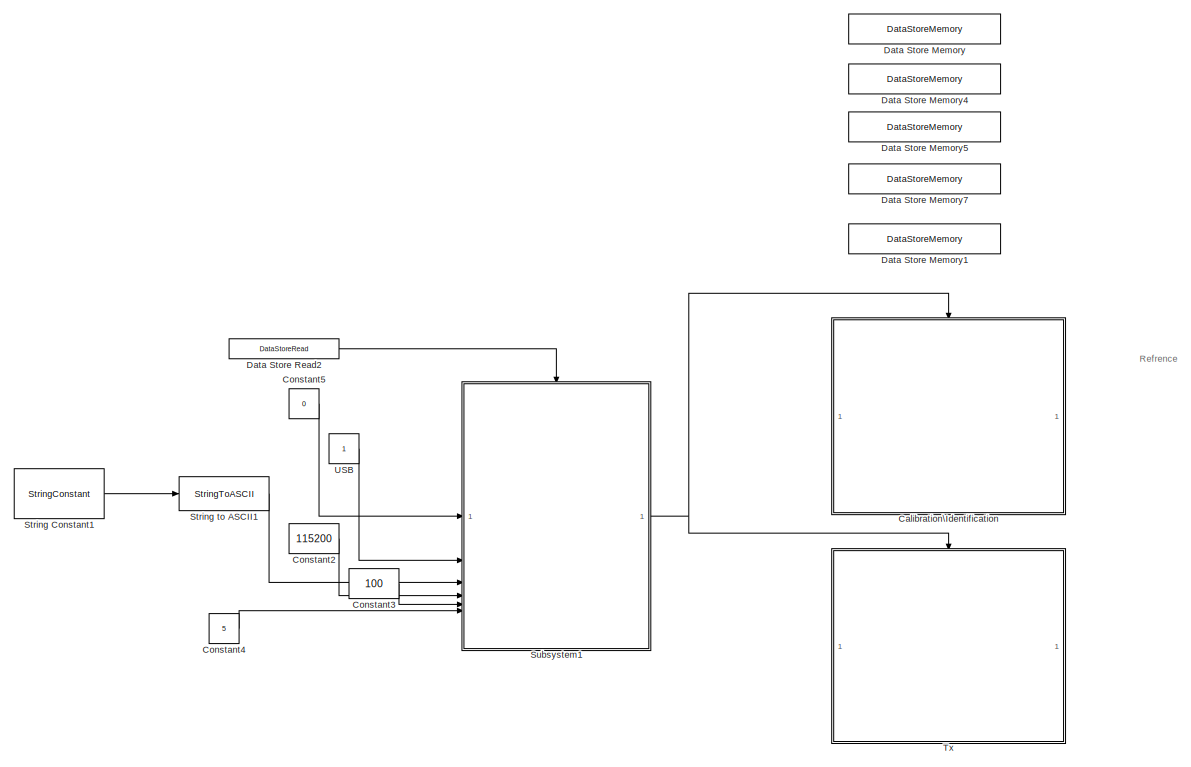
[diagram: root canvas - part 1/4, left side, full height]
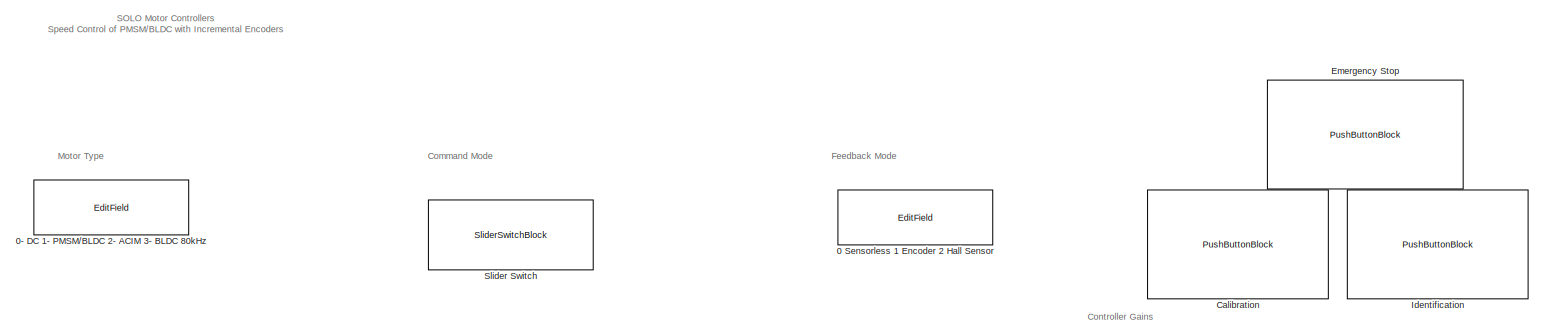
[diagram: root canvas - part 2/4, top right region]
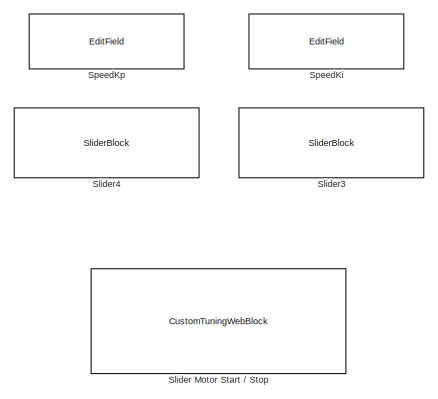
[diagram: root canvas - part 3/4, bottom right region]
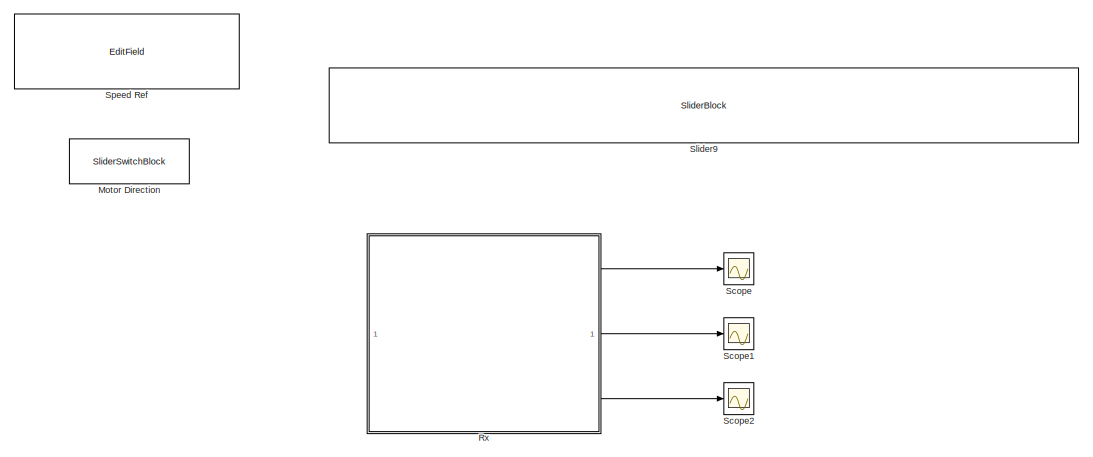
[diagram: root canvas - part 4/4, bottom center region]
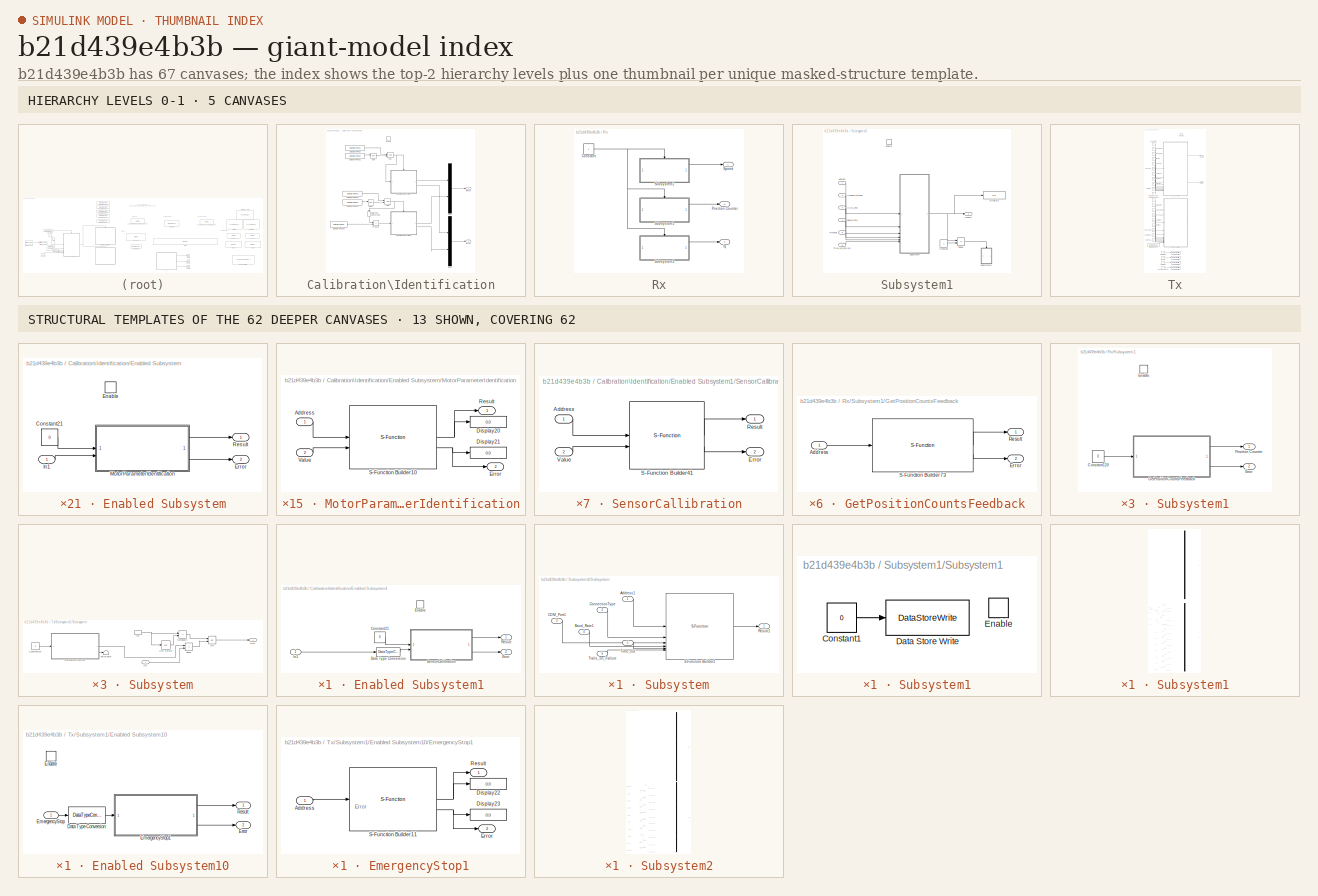
[diagram: thumbnail index - top-2 hierarchy levels (5 canvases) + 13 structural-template representatives of the remaining 62 canvases]
MODEL slx_b21d439e4b3b
KIND model
CONFIG AbsTol = auto
CONFIG EnableMultiTasking = off
CONFIG FixedStep = auto
CONFIG MaxStep = auto
CONFIG MinStep = auto
CONFIG RelTol = 1e-3
CONFIG SampleTimeConstraint = Unconstrained
CONFIG SolverName = VariableStepAuto
CONFIG StartTime = 0.0
CONFIG StopTime = inf
BLOCK [EditField] 0 Sensorless 1 Encoder 2 Hall Sensor
  Alignment = Center
  LabelPosition = Hide
  ShowInitialText = on
BLOCK [EditField] 0- DC 1- PMSM//BLDC 2- ACIM 3- BLDC 80kHz 
  Alignment = Center
  LabelPosition = Hide
  ShowInitialText = on
BLOCK [PushButtonBlock] Calibration
  ButtonText = Calibration
  OffValue = 0.000000
BLOCK [SubSystem] Calibration\Identification
BLOCK [Logic] Calibration\Identification/AND
  AllPortsSameDT = off
  IconShape = distinctive
  OutDataTypeStr = boolean
BLOCK [Logic] Calibration\Identification/AND1
  AllPortsSameDT = off
  IconShape = distinctive
  OutDataTypeStr = boolean
BLOCK [DataStoreRead] Calibration\Identification/Data Store Read
  DataStoreName = Identification
  IndexOptions = Index vector (dialog)
  Indices = 1
  OutputSizes = 1
BLOCK [DataStoreRead] Calibration\Identification/Data Store Read1
  DataStoreName = Enable
  IndexOptions = Index vector (dialog)
  Indices = 1
  OutputSizes = 1
BLOCK [DataStoreRead] Calibration\Identification/Data Store Read2
  DataStoreName = Enable
  IndexOptions = Index vector (dialog)
  Indices = 1
  OutputSizes = 1
BLOCK [DataStoreRead] Calibration\Identification/Data Store Read3
  DataStoreName = Calibration
  IndexOptions = Index vector (dialog)
  Indices = 1
  OutputSizes = 1
BLOCK [DataStoreRead] Calibration\Identification/Data Store Read4
  DataStoreName = FeedbackMode
  IndexOptions = Index vector (dialog)
  Indices = 1
  OutputSizes = 1
BLOCK [DataTypeConversion] Calibration\Identification/Data Type Conversion
  NameLocation = left
  RndMeth = Floor
  SaturateOnIntegerOverflow = off
BLOCK [EnablePort] Calibration\Identification/Enable
BLOCK [SubSystem] Calibration\Identification/Enabled Subsystem
  TreatAsAtomicUnit = on
BLOCK [Constant] Calibration\Identification/Enabled Subsystem/Constant21
  OutDataTypeStr = uint8
  Value = 0
BLOCK [EnablePort] Calibration\Identification/Enabled Subsystem/Enable
BLOCK [Outport] Calibration\Identification/Enabled Subsystem/Error
  Port = 2
BLOCK [Inport] Calibration\Identification/Enabled Subsystem/In1
BLOCK [SubSystem] Calibration\Identification/Enabled Subsystem/MotorParameterIdentification
BLOCK [Inport] Calibration\Identification/Enabled Subsystem/MotorParameterIdentification/Address
BLOCK [Display] Calibration\Identification/Enabled Subsystem/MotorParameterIdentification/Display20
  Decimation = 1
  Format = decimal (Stored Integer)
BLOCK [Display] Calibration\Identification/Enabled Subsystem/MotorParameterIdentification/Display21
  Decimation = 1
  Format = decimal (Stored Integer)
BLOCK [Outport] Calibration\Identification/Enabled Subsystem/MotorParameterIdentification/Error
  Port = 2
BLOCK [Outport] Calibration\Identification/Enabled Subsystem/MotorParameterIdentification/Result
BLOCK [S-Function] Calibration\Identification/Enabled Subsystem/MotorParameterIdentification/S-Function Builder10
  CopyFcn = set_param(gcbh,'LinkStatus','none')
  EnableBusSupport = off
  FunctionName = MotorParametersIdentification
  OpenFcn = sfunctionwizard(gcbh)
  Priority = 2
  SFcnIsStateOwnerBlock = off
  SFunctionDeploymentMode = off
  SFunctionModules = MotorParametersIdentification_wrapper
BLOCK [Inport] Calibration\Identification/Enabled Subsystem/MotorParameterIdentification/Value
  Port = 2
BLOCK [Outport] Calibration\Identification/Enabled Subsystem/Result
BLOCK [SubSystem] Calibration\Identification/Enabled Subsystem1
  TreatAsAtomicUnit = on
BLOCK [Constant] Calibration\Identification/Enabled Subsystem1/Constant21
  OutDataTypeStr = uint8
  Value = 0
BLOCK [DataTypeConversion] Calibration\Identification/Enabled Subsystem1/Data Type Conversion
  RndMeth = Floor
  SaturateOnIntegerOverflow = off
BLOCK [EnablePort] Calibration\Identification/Enabled Subsystem1/Enable
BLOCK [Outport] Calibration\Identification/Enabled Subsystem1/Error
  Port = 2
BLOCK [Inport] Calibration\Identification/Enabled Subsystem1/In1
BLOCK [Outport] Calibration\Identification/Enabled Subsystem1/Result
BLOCK [SubSystem] Calibration\Identification/Enabled Subsystem1/SensorCallibration
BLOCK [Inport] Calibration\Identification/Enabled Subsystem1/SensorCallibration/Address
BLOCK [Outport] Calibration\Identification/Enabled Subsystem1/SensorCallibration/Error
  Port = 2
BLOCK [Outport] Calibration\Identification/Enabled Subsystem1/SensorCallibration/Result
BLOCK [S-Function] Calibration\Identification/Enabled Subsystem1/SensorCallibration/S-Function Builder41
  CopyFcn = set_param(gcbh,'LinkStatus','none')
  EnableBusSupport = off
  FunctionName = SensorCalibration
  OpenFcn = sfunctionwizard(gcbh)
  Priority = 2
  SFcnIsStateOwnerBlock = off
  SFunctionDeploymentMode = off
  SFunctionModules = SensorCalibration_wrapper
BLOCK [Inport] Calibration\Identification/Enabled Subsystem1/SensorCallibration/Value
  Port = 2
BLOCK [Outport] Calibration\Identification/Error
  Port = 2
BLOCK [Mux] Calibration\Identification/Mux
  DisplayOption = bar
  Inputs = 2
BLOCK [Mux] Calibration\Identification/Mux1
  DisplayOption = bar
  Inputs = 2
BLOCK [Logic] Calibration\Identification/NOT
  AllPortsSameDT = off
  IconShape = distinctive
  Operator = NOT
  OutDataTypeStr = boolean
BLOCK [Logic] Calibration\Identification/NOT1
  AllPortsSameDT = off
  IconShape = distinctive
  Operator = NOT
  OutDataTypeStr = boolean
BLOCK [Product] Calibration\Identification/Product
BLOCK [Outport] Calibration\Identification/Result
BLOCK [Constant] Constant2
  OutDataTypeStr = uint32
  Value = 115200
BLOCK [Constant] Constant3
  OutDataTypeStr = double
  Value = 100
BLOCK [Constant] Constant4
  OutDataTypeStr = int32
  Value = 5
BLOCK [Constant] Constant5
  OutDataTypeStr = uint8
  Value = 0
BLOCK [DataStoreMemory] Data Store Memory
  DataStoreName = RunOnce
  InitialValue = 1
  OutDataTypeStr = boolean
  ReadBeforeWriteMsg = warning
  ShowAdditionalParam = off
  WriteAfterReadMsg = warning
  WriteAfterWriteMsg = warning
BLOCK [DataStoreMemory] Data Store Memory1
  DataStoreName = FeedbackMode
  ReadBeforeWriteMsg = warning
  ShowAdditionalParam = off
  WriteAfterReadMsg = warning
  WriteAfterWriteMsg = warning
BLOCK [DataStoreMemory] Data Store Memory4
  DataStoreName = Identification
  ReadBeforeWriteMsg = warning
  ShowAdditionalParam = off
  WriteAfterReadMsg = warning
  WriteAfterWriteMsg = warning
BLOCK [DataStoreMemory] Data Store Memory5
  DataStoreName = Enable
  ReadBeforeWriteMsg = warning
  ShowAdditionalParam = off
  WriteAfterReadMsg = warning
  WriteAfterWriteMsg = warning
BLOCK [DataStoreMemory] Data Store Memory7
  DataStoreName = Calibration
  ReadBeforeWriteMsg = warning
  ShowAdditionalParam = off
  WriteAfterReadMsg = warning
  WriteAfterWriteMsg = warning
BLOCK [DataStoreRead] Data Store Read2
  DataStoreName = RunOnce
  IndexOptions = Index vector (dialog)
  Indices = 1
  OutputSizes = 1
BLOCK [PushButtonBlock] Emergency Stop
  ButtonText = Emergency Stop
  OffValue = 1.000000
  OnValue = 0
BLOCK [PushButtonBlock] Identification
  ButtonText = Identification
  OffValue = 0.000000
BLOCK [SliderSwitchBlock] Motor Direction
  LabelPosition = Bottom
BLOCK [SubSystem] Rx
BLOCK [Constant] Rx/Constant
  SampleTime = 1e-3
BLOCK [Outport] Rx/Iq
  Port = 3
BLOCK [Outport] Rx/Position Counter
  Port = 2
BLOCK [Outport] Rx/Speed
BLOCK [SubSystem] Rx/Subsystem1
BLOCK [Constant] Rx/Subsystem1/Constant120
  OutDataTypeStr = uint8
  Value = 0
BLOCK [EnablePort] Rx/Subsystem1/Enable
BLOCK [Outport] Rx/Subsystem1/Error
  Port = 2
BLOCK [SubSystem] Rx/Subsystem1/GetPositionCountsFeedback
BLOCK [Inport] Rx/Subsystem1/GetPositionCountsFeedback/Address
BLOCK [Outport] Rx/Subsystem1/GetPositionCountsFeedback/Error
  Port = 2
BLOCK [Outport] Rx/Subsystem1/GetPositionCountsFeedback/Result
BLOCK [S-Function] Rx/Subsystem1/GetPositionCountsFeedback/S-Function Builder73
  CopyFcn = set_param(gcbh,'LinkStatus','none')
  EnableBusSupport = off
  FunctionName = GetPositionCountsFeedback
  OpenFcn = sfunctionwizard(gcbh)
  Priority = 3
  SFcnIsStateOwnerBlock = off
  SFunctionDeploymentMode = off
  SFunctionModules = GetPositionCountsFeedback_wrapper
BLOCK [Outport] Rx/Subsystem1/Position Counter
BLOCK [SubSystem] Rx/Subsystem2
BLOCK [Constant] Rx/Subsystem2/Constant120
  OutDataTypeStr = uint8
  Value = 0
BLOCK [EnablePort] Rx/Subsystem2/Enable
BLOCK [Outport] Rx/Subsystem2/Error
  Port = 2
BLOCK [SubSystem] Rx/Subsystem2/GetSpeedFeedback
BLOCK [Inport] Rx/Subsystem2/GetSpeedFeedback/Address
BLOCK [Outport] Rx/Subsystem2/GetSpeedFeedback/Error
  Port = 2
BLOCK [Outport] Rx/Subsystem2/GetSpeedFeedback/Result
BLOCK [S-Function] Rx/Subsystem2/GetSpeedFeedback/S-Function Builder66
  CopyFcn = set_param(gcbh,'LinkStatus','none')
  EnableBusSupport = off
  FunctionName = GetSpeedFeedback
  OpenFcn = sfunctionwizard(gcbh)
  Priority = 3
  SFcnIsStateOwnerBlock = off
  SFunctionDeploymentMode = off
  SFunctionModules = GetSpeedFeedback_wrapper
BLOCK [Outport] Rx/Subsystem2/Speed
BLOCK [SubSystem] Rx/Subsystem3
BLOCK [Constant] Rx/Subsystem3/Constant120
  OutDataTypeStr = uint8
  Value = 0
BLOCK [EnablePort] Rx/Subsystem3/Enable
BLOCK [Outport] Rx/Subsystem3/Error
  Port = 2
BLOCK [SubSystem] Rx/Subsystem3/GetQuadratureCurrentIqFeedback
BLOCK [Inport] Rx/Subsystem3/GetQuadratureCurrentIqFeedback/Address
BLOCK [Outport] Rx/Subsystem3/GetQuadratureCurrentIqFeedback/Error
  Port = 2
BLOCK [Outport] Rx/Subsystem3/GetQuadratureCurrentIqFeedback/Result
BLOCK [S-Function] Rx/Subsystem3/GetQuadratureCurrentIqFeedback/S-Function Builder57
  CopyFcn = set_param(gcbh,'LinkStatus','none')
  EnableBusSupport = off
  FunctionName = GetQuadratureCurrentIqFeedback
  OpenFcn = sfunctionwizard(gcbh)
  Priority = 3
  SFcnIsStateOwnerBlock = off
  SFunctionDeploymentMode = off
  SFunctionModules = GetQuadratureCurrentIqFeedback_wrapper
BLOCK [Outport] Rx/Subsystem3/Iq
BLOCK [Scope] Scope
  Floating = off
  NumInputPorts = 1
  ScopeSpecificationString = Simulink.scopes.TimeScopeBlockCfg('CurrentConfiguration', extmgr.ConfigurationSet(extmgr.Configuration('Core','General UI',true),extmgr.Configuration('Core','Source UI',true),extmgr.Configuration('Sources','WiredSimulink',true,'DataLoggingVariableName','ScopeData1'),extmgr.Configuration('Visuals','Time Domain',true,'SerializedDisplays',{struct('MinYLimReal','-4822.875','MaxYLimReal','6595.875','YL...<+1426ch>
BLOCK [Scope] Scope1
  Floating = off
  NumInputPorts = 1
  ScopeSpecificationString = Simulink.scopes.TimeScopeBlockCfg('CurrentConfiguration', extmgr.ConfigurationSet(extmgr.Configuration('Core','General UI',true),extmgr.Configuration('Core','Source UI',true),extmgr.Configuration('Sources','WiredSimulink',true,'DataLoggingVariableName','ScopeData2'),extmgr.Configuration('Visuals','Time Domain',true,'SerializedDisplays',{struct('MinYLimReal','-536870879.875','MaxYLimReal','48318379...<+1425ch>
BLOCK [Scope] Scope2
  Floating = off
  NumInputPorts = 1
  ScopeSpecificationString = Simulink.scopes.TimeScopeBlockCfg('CurrentConfiguration', extmgr.ConfigurationSet(extmgr.Configuration('Core','General UI',true),extmgr.Configuration('Core','Source UI',true),extmgr.Configuration('Sources','WiredSimulink',true),extmgr.Configuration('Visuals','Time Domain',true,'SerializedDisplays',{struct('MinYLimReal','-0.6343','MaxYLimReal','2.18395','YLabelReal','','MinYLimMag','0.00000','MaxYL...<+1355ch>
BLOCK [CustomTuningWebBlock] Slider Motor Start // Stop
  Configuration = {"components":[{"name":"CustomSwitchStateComponent","settings":{"position":[0,0,1,1],"states":[{"HitRegion":{"position":[0,0,0.5,1]},"Image":{"position":[0,0,1,1],"size":[1,1],"src":"data:image\/svg+xml;base64,PD94bWwgdmVyc2lvbj0iMS4wIiBlbmNvZGluZz0idXRmLTgiPz4NCjwhLS0gR2VuZXJhdG9yOiBBZG9iZSBJbGx1c3RyYXRvciAyNS4yLjEsIFNWRyBFeHBvcnQgUGx1Zy1JbiAuIFNWRyBWZXJzaW9uOiA2LjAwIEJ1aWxkIDApICAtLT4NCjxzdmcgdm...<+12656ch>
  LabelPosition = Hide
  ShowInitialText = on
BLOCK [SliderSwitchBlock] Slider Switch
BLOCK [SliderBlock] Slider3
  LabelPosition = Hide
  ScaleMax = 5
BLOCK [SliderBlock] Slider4
  LabelPosition = Hide
  ScaleMax = 5
BLOCK [SliderBlock] Slider9
  LabelPosition = Hide
  ScaleMax = 6000
BLOCK [EditField] Speed Ref
  Alignment = Center
  LabelPosition = Hide
  ShowInitialText = on
BLOCK [EditField] SpeedKi
  Alignment = Center
  LabelPosition = Hide
  ShowInitialText = on
BLOCK [EditField] SpeedKp
  Alignment = Center
  LabelPosition = Hide
  ShowInitialText = on
BLOCK [StringConstant] String Constant1
  String = "COM5"
BLOCK [StringToASCII] String to ASCII1
  OutputVectorSize = 5
BLOCK [SubSystem] Subsystem1
BLOCK [Inport] Subsystem1/Address
BLOCK [Inport] Subsystem1/Baud_Rate
  Port = 4
BLOCK [Inport] Subsystem1/COM_Port
  Port = 3
BLOCK [Inport] Subsystem1/ConnectionType
  Port = 2
BLOCK [Constant] Subsystem1/Constant
  OutDataTypeStr = Inherit: Inherit via back propagation
BLOCK [Display] Subsystem1/Display1
  Decimation = 1
BLOCK [EnablePort] Subsystem1/Enable
BLOCK [RelationalOperator] Subsystem1/Equal
  InputSameDT = off
  Operator = ==
  OutDataTypeStr = boolean
  RndMeth = Simplest
BLOCK [Outport] Subsystem1/Result
BLOCK [SubSystem] Subsystem1/Subsystem
BLOCK [Inport] Subsystem1/Subsystem/Address1
BLOCK [Inport] Subsystem1/Subsystem/Baud_Rate1
  Port = 4
BLOCK [Inport] Subsystem1/Subsystem/COM_Port1
  Port = 3
BLOCK [Inport] Subsystem1/Subsystem/ConnectionType
  Port = 2
BLOCK [Outport] Subsystem1/Subsystem/Result1
BLOCK [S-Function] Subsystem1/Subsystem/S-Function Builder1
  CopyFcn = set_param(gcbh,'LinkStatus','none')
  EnableBusSupport = off
  FunctionName = Setup
  OpenFcn = sfunctionwizard(gcbh)
  Priority = 1
  SFcnIsStateOwnerBlock = off
  SFunctionDeploymentMode = off
  SFunctionModules = Setup_wrapper
BLOCK [Inport] Subsystem1/Subsystem/Time_out
  Port = 5
BLOCK [Inport] Subsystem1/Subsystem/Trails_on_Failure
  Port = 6
BLOCK [SubSystem] Subsystem1/Subsystem1
BLOCK [Constant] Subsystem1/Subsystem1/Constant1
  OutDataTypeStr = Inherit: Inherit via back propagation
  Value = 0
BLOCK [DataStoreWrite] Subsystem1/Subsystem1/Data Store Write
  DataStoreName = RunOnce
  IndexOptions = Index vector (dialog)
  Indices = 1
  OutputSizes = 1
BLOCK [EnablePort] Subsystem1/Subsystem1/Enable
BLOCK [Inport] Subsystem1/Timeout
  Port = 5
BLOCK [Inport] Subsystem1/Trials_on_Failure
  Port = 6
BLOCK [SubSystem] Tx
BLOCK [Constant] Tx/C.C.W Offset
  OutDataTypeStr = Inherit: Inherit via back propagation
  Value = 0.48
BLOCK [Constant] Tx/C.W Offset
  OutDataTypeStr = Inherit: Inherit via back propagation
  Value = 0.48
BLOCK [Constant] Tx/Calibration
  OutDataTypeStr = Inherit: Inherit via back propagation
  Value = 0
BLOCK [Constant] Tx/CommandMode
  OutDataTypeStr = Inherit: Inherit via back propagation
BLOCK [Constant] Tx/Constant10
  OutDataTypeStr = Inherit: Inherit via back propagation
  Value = 0
BLOCK [Constant] Tx/Constant14
  OutDataTypeStr = Inherit: Inherit via back propagation
  Value = 0
BLOCK [Constant] Tx/Constant57
  OutDataTypeStr = int32
  Value = 0
BLOCK [Constant] Tx/ControlMode
  OutDataTypeStr = Inherit: Inherit via back propagation
  Value = 0
BLOCK [Constant] Tx/CurrentKi
  OutDataTypeStr = Inherit: Inherit via back propagation
  Value = 0.15
BLOCK [Constant] Tx/CurrentKp
  OutDataTypeStr = Inherit: Inherit via back propagation
  Value = 0.2
BLOCK [Constant] Tx/CurrentLimit
  OutDataTypeStr = Inherit: Inherit via back propagation
  Value = 7.5
BLOCK [DataStoreRead] Tx/Data Store Read
  DataStoreName = FeedbackMode
  IndexOptions = Index vector (dialog)
  Indices = 1
  OutputSizes = 1
BLOCK [DataStoreWrite] Tx/Data Store Write1
  DataStoreName = FeedbackMode
  IndexOptions = Index vector (dialog)
  Indices = 1
  OutputSizes = 1
BLOCK [DataStoreWrite] Tx/Data Store Write3
  DataStoreName = Identification
  IndexOptions = Index vector (dialog)
  Indices = 1
  OutputSizes = 1
BLOCK [DataStoreWrite] Tx/Data Store Write4
  DataStoreName = Enable
  IndexOptions = Index vector (dialog)
  Indices = 1
  OutputSizes = 1
BLOCK [DataStoreWrite] Tx/Data Store Write6
  DataStoreName = Calibration
  IndexOptions = Index vector (dialog)
  Indices = 1
  OutputSizes = 1
BLOCK [Constant] Tx/Direction
  OutDataTypeStr = Inherit: Inherit via back propagation
  Value = 0
BLOCK [Constant] Tx/EmergencyStop
  OutDataTypeStr = boolean
BLOCK [Constant] Tx/Enable
  OutDataTypeStr = Inherit: Inherit via back propagation
  Value = 0
BLOCK [EnablePort] Tx/Enable1
BLOCK [Constant] Tx/EncoderLines
  OutDataTypeStr = Inherit: Inherit via back propagation
  Value = 1000
BLOCK [Outport] Tx/Error
  Port = 2
BLOCK [Constant] Tx/FeedbackMode
  OutDataTypeStr = Inherit: Inherit via back propagation
BLOCK [Constant] Tx/Identification
  OutDataTypeStr = Inherit: Inherit via back propagation
  Value = 0
BLOCK [Constant] Tx/MotorType
  OutDataTypeStr = Inherit: Inherit via back propagation
BLOCK [Constant] Tx/Numper of Poles
  OutDataTypeStr = Inherit: Inherit via back propagation
  Value = 8
BLOCK [Constant] Tx/PositionKi
  OutDataTypeStr = Inherit: Inherit via back propagation
  Value = 0.005
BLOCK [Constant] Tx/PositionKp
  OutDataTypeStr = Inherit: Inherit via back propagation
  Value = 0.4
BLOCK [Outport] Tx/Result
BLOCK [Constant] Tx/SpeedKi
  OutDataTypeStr = Inherit: Inherit via back propagation
  Value = 0.001
BLOCK [Constant] Tx/SpeedKp
  OutDataTypeStr = Inherit: Inherit via back propagation
  Value = 0.1
BLOCK [Constant] Tx/SpeedLimit
  OutDataTypeStr = Inherit: Inherit via back propagation
  Value = 30000
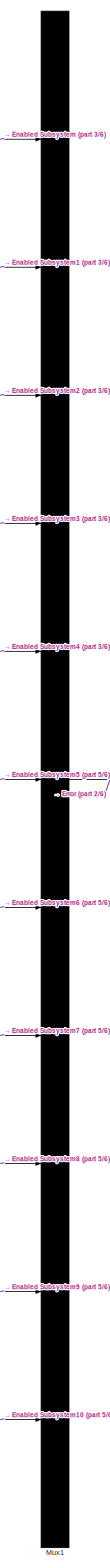
[diagram: Tx/Subsystem1 - part 1/6, top right region]
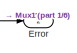
[diagram: Tx/Subsystem1 - part 2/6, top right region]
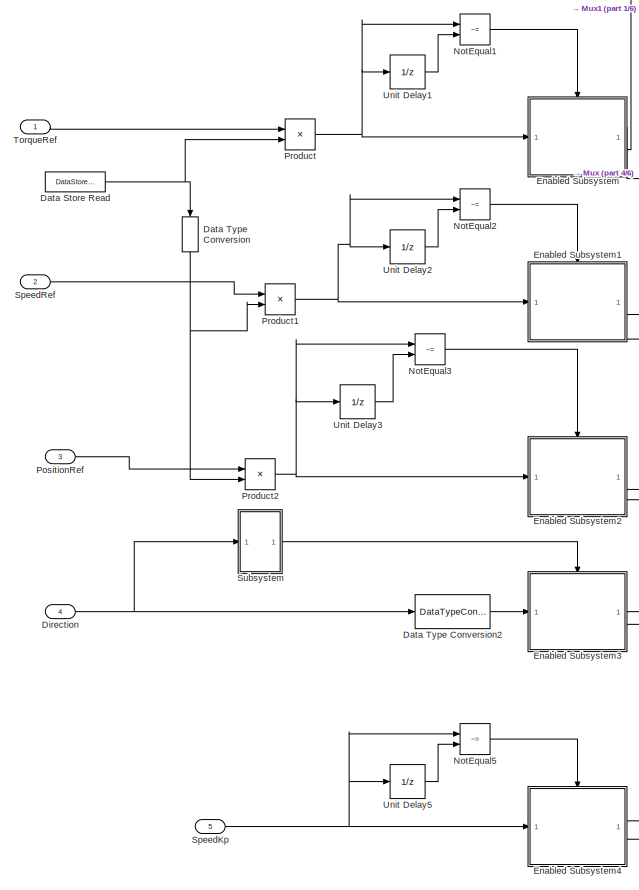
[diagram: Tx/Subsystem1 - part 3/6, middle left region]
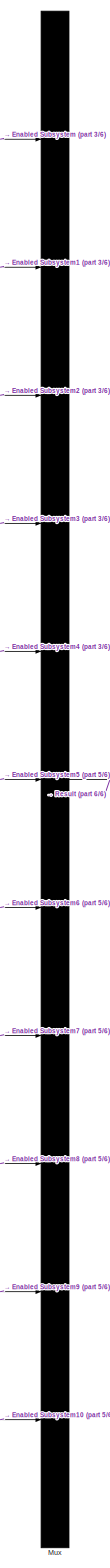
[diagram: Tx/Subsystem1 - part 4/6, bottom right region]
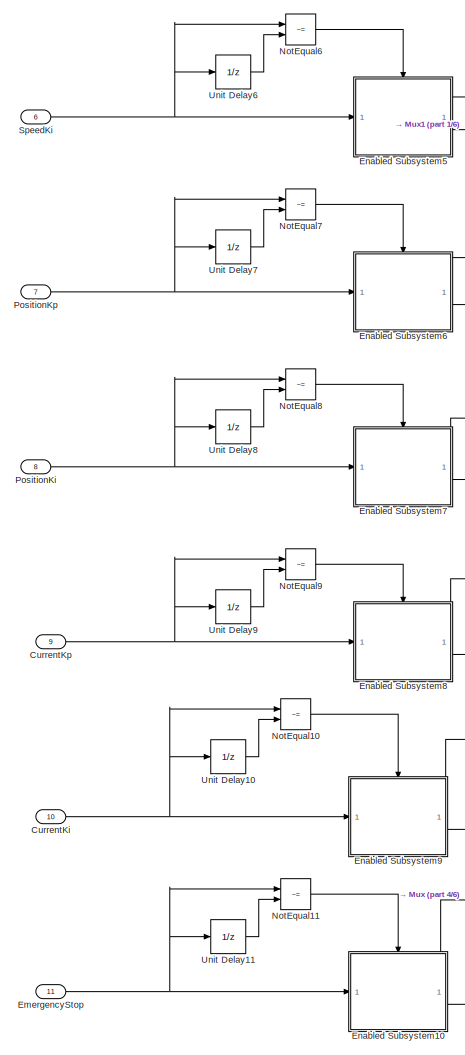
[diagram: Tx/Subsystem1 - part 5/6, bottom left region]
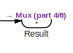
[diagram: Tx/Subsystem1 - part 6/6, bottom right region]
BLOCK [SubSystem] Tx/Subsystem1
BLOCK [Inport] Tx/Subsystem1/CurrentKi
  Port = 10
BLOCK [Inport] Tx/Subsystem1/CurrentKp
  Port = 9
BLOCK [DataStoreRead] Tx/Subsystem1/Data Store Read
  DataStoreName = Enable
  IndexOptions = Index vector (dialog)
  Indices = 1
  OutputSizes = 1
BLOCK [DataTypeConversion] Tx/Subsystem1/Data Type Conversion
  NameLocation = left
  OutDataTypeStr = uint32
  RndMeth = Floor
  SaturateOnIntegerOverflow = off
BLOCK [DataTypeConversion] Tx/Subsystem1/Data Type Conversion2
  OutDataTypeStr = boolean
  RndMeth = Floor
  SaturateOnIntegerOverflow = off
BLOCK [Inport] Tx/Subsystem1/Direction
  Port = 4
BLOCK [Inport] Tx/Subsystem1/EmergencyStop
  Port = 11
BLOCK [SubSystem] Tx/Subsystem1/Enabled Subsystem
  NameLocation = right
  TreatAsAtomicUnit = on
BLOCK [Constant] Tx/Subsystem1/Enabled Subsystem/Constant
  OutDataTypeStr = Inherit: Inherit via back propagation
  Value = 0
BLOCK [EnablePort] Tx/Subsystem1/Enabled Subsystem/Enable
BLOCK [Outport] Tx/Subsystem1/Enabled Subsystem/Error
  Port = 2
BLOCK [Outport] Tx/Subsystem1/Enabled Subsystem/Result
BLOCK [SubSystem] Tx/Subsystem1/Enabled Subsystem/SetTorqueReferenceIq
BLOCK [Inport] Tx/Subsystem1/Enabled Subsystem/SetTorqueReferenceIq/Address
  IconDisplay = Signal name
  LockScale = on
  OutDataTypeStr = uint8
BLOCK [Display] Tx/Subsystem1/Enabled Subsystem/SetTorqueReferenceIq/Display12
  Decimation = 1
  Format = decimal (Stored Integer)
BLOCK [Display] Tx/Subsystem1/Enabled Subsystem/SetTorqueReferenceIq/Display13
  Decimation = 1
  Format = decimal (Stored Integer)
BLOCK [Outport] Tx/Subsystem1/Enabled Subsystem/SetTorqueReferenceIq/Error
  IconDisplay = Signal name
  OutDataTypeStr = int32
  Port = 2
BLOCK [Outport] Tx/Subsystem1/Enabled Subsystem/SetTorqueReferenceIq/Result
  IconDisplay = Signal name
  OutDataTypeStr = boolean
BLOCK [S-Function] Tx/Subsystem1/Enabled Subsystem/SetTorqueReferenceIq/S-Function Builder4
  CopyFcn = set_param(gcbh,'LinkStatus','none')
  EnableBusSupport = off
  FunctionName = SetTorqueReferenceIq
  OpenFcn = sfunctionwizard(gcbh)
  Priority = 2
  SFcnIsStateOwnerBlock = off
  SFunctionDeploymentMode = off
  SFunctionModules = SetTorqueReferenceIq_wrapper
BLOCK [Inport] Tx/Subsystem1/Enabled Subsystem/SetTorqueReferenceIq/Value
  IconDisplay = Signal name
  LockScale = on
  OutDataTypeStr = single
  Port = 2
BLOCK [Inport] Tx/Subsystem1/Enabled Subsystem/TorqueRef
BLOCK [SubSystem] Tx/Subsystem1/Enabled Subsystem1
  NameLocation = right
  TreatAsAtomicUnit = on
BLOCK [Constant] Tx/Subsystem1/Enabled Subsystem1/Constant
  OutDataTypeStr = Inherit: Inherit via back propagation
  Value = 0
BLOCK [EnablePort] Tx/Subsystem1/Enabled Subsystem1/Enable
BLOCK [Outport] Tx/Subsystem1/Enabled Subsystem1/Error
  Port = 2
BLOCK [Outport] Tx/Subsystem1/Enabled Subsystem1/Result
BLOCK [Inport] Tx/Subsystem1/Enabled Subsystem1/Speed
BLOCK [SubSystem] Tx/Subsystem1/Enabled Subsystem1/SpeedRef
BLOCK [Inport] Tx/Subsystem1/Enabled Subsystem1/SpeedRef/Address
BLOCK [Display] Tx/Subsystem1/Enabled Subsystem1/SpeedRef/Display16
  Decimation = 1
  Format = decimal (Stored Integer)
BLOCK [Display] Tx/Subsystem1/Enabled Subsystem1/SpeedRef/Display17
  Decimation = 1
  Format = decimal (Stored Integer)
BLOCK [Outport] Tx/Subsystem1/Enabled Subsystem1/SpeedRef/Error
  Port = 2
BLOCK [Outport] Tx/Subsystem1/Enabled Subsystem1/SpeedRef/Result
BLOCK [S-Function] Tx/Subsystem1/Enabled Subsystem1/SpeedRef/S-Function Builder8
  CopyFcn = set_param(gcbh,'LinkStatus','none')
  EnableBusSupport = off
  FunctionName = SetSpeedReference
  OpenFcn = sfunctionwizard(gcbh)
  Priority = 2
  SFcnIsStateOwnerBlock = off
  SFunctionDeploymentMode = off
  SFunctionModules = SetSpeedReference_wrapper
BLOCK [Inport] Tx/Subsystem1/Enabled Subsystem1/SpeedRef/Value
  Port = 2
BLOCK [SubSystem] Tx/Subsystem1/Enabled Subsystem10
  NameLocation = right
  TreatAsAtomicUnit = on
BLOCK [DataTypeConversion] Tx/Subsystem1/Enabled Subsystem10/Data Type Conversion
  RndMeth = Floor
  SaturateOnIntegerOverflow = off
BLOCK [Inport] Tx/Subsystem1/Enabled Subsystem10/EmergencyStop
BLOCK [SubSystem] Tx/Subsystem1/Enabled Subsystem10/EmergencyStop1
BLOCK [Inport] Tx/Subsystem1/Enabled Subsystem10/EmergencyStop1/Address
BLOCK [Display] Tx/Subsystem1/Enabled Subsystem10/EmergencyStop1/Display22
  Decimation = 1
  Format = decimal (Stored Integer)
BLOCK [Display] Tx/Subsystem1/Enabled Subsystem10/EmergencyStop1/Display23
  Decimation = 1
  Format = decimal (Stored Integer)
BLOCK [Outport] Tx/Subsystem1/Enabled Subsystem10/EmergencyStop1/Error
  Port = 2
BLOCK [Outport] Tx/Subsystem1/Enabled Subsystem10/EmergencyStop1/Result
BLOCK [S-Function] Tx/Subsystem1/Enabled Subsystem10/EmergencyStop1/S-Function Builder11
  CopyFcn = set_param(gcbh,'LinkStatus','none')
  EnableBusSupport = off
  FunctionName = EmergencyStop
  OpenFcn = sfunctionwizard(gcbh)
  Priority = 2
  SFcnIsStateOwnerBlock = off
  SFunctionDeploymentMode = off
  SFunctionModules = EmergencyStop_wrapper
BLOCK [EnablePort] Tx/Subsystem1/Enabled Subsystem10/Enable
BLOCK [Outport] Tx/Subsystem1/Enabled Subsystem10/Error
  Port = 2
BLOCK [Outport] Tx/Subsystem1/Enabled Subsystem10/Result
BLOCK [SubSystem] Tx/Subsystem1/Enabled Subsystem2
  NameLocation = right
  TreatAsAtomicUnit = on
BLOCK [Constant] Tx/Subsystem1/Enabled Subsystem2/Constant
  OutDataTypeStr = Inherit: Inherit via back propagation
  Value = 0
BLOCK [EnablePort] Tx/Subsystem1/Enabled Subsystem2/Enable
BLOCK [Outport] Tx/Subsystem1/Enabled Subsystem2/Error
  Port = 2
BLOCK [Inport] Tx/Subsystem1/Enabled Subsystem2/PositionRef
BLOCK [Outport] Tx/Subsystem1/Enabled Subsystem2/Result
BLOCK [SubSystem] Tx/Subsystem1/Enabled Subsystem2/SetPositionRef
BLOCK [Inport] Tx/Subsystem1/Enabled Subsystem2/SetPositionRef/Address
BLOCK [Outport] Tx/Subsystem1/Enabled Subsystem2/SetPositionRef/Error
  Port = 2
BLOCK [Outport] Tx/Subsystem1/Enabled Subsystem2/SetPositionRef/Result
BLOCK [S-Function] Tx/Subsystem1/Enabled Subsystem2/SetPositionRef/S-Function Builder30
  CopyFcn = set_param(gcbh,'LinkStatus','none')
  EnableBusSupport = off
  FunctionName = SetPositionReference
  OpenFcn = sfunctionwizard(gcbh)
  Priority = 2
  SFcnIsStateOwnerBlock = off
  SFunctionDeploymentMode = off
  SFunctionModules = SetPositionReference_wrapper
BLOCK [Inport] Tx/Subsystem1/Enabled Subsystem2/SetPositionRef/Value
  Port = 2
BLOCK [SubSystem] Tx/Subsystem1/Enabled Subsystem3
  NameLocation = right
  TreatAsAtomicUnit = on
BLOCK [Constant] Tx/Subsystem1/Enabled Subsystem3/Constant
  OutDataTypeStr = Inherit: Inherit via back propagation
  Value = 0
BLOCK [Inport] Tx/Subsystem1/Enabled Subsystem3/Direction
BLOCK [EnablePort] Tx/Subsystem1/Enabled Subsystem3/Enable
BLOCK [Outport] Tx/Subsystem1/Enabled Subsystem3/Error
  Port = 2
BLOCK [Outport] Tx/Subsystem1/Enabled Subsystem3/Result
BLOCK [SubSystem] Tx/Subsystem1/Enabled Subsystem3/SetMotorDirection
BLOCK [Inport] Tx/Subsystem1/Enabled Subsystem3/SetMotorDirection/Address
BLOCK [Outport] Tx/Subsystem1/Enabled Subsystem3/SetMotorDirection/Error
  Port = 2
BLOCK [Outport] Tx/Subsystem1/Enabled Subsystem3/SetMotorDirection/Result
BLOCK [S-Function] Tx/Subsystem1/Enabled Subsystem3/SetMotorDirection/S-Function Builder15
  CopyFcn = set_param(gcbh,'LinkStatus','none')
  EnableBusSupport = off
  FunctionName = SetMotorDirection
  OpenFcn = sfunctionwizard(gcbh)
  Priority = 2
  SFcnIsStateOwnerBlock = off
  SFunctionDeploymentMode = off
  SFunctionModules = SetMotorDirection_wrapper
BLOCK [Inport] Tx/Subsystem1/Enabled Subsystem3/SetMotorDirection/Value
  Port = 2
BLOCK [SubSystem] Tx/Subsystem1/Enabled Subsystem4
  NameLocation = right
  TreatAsAtomicUnit = on
BLOCK [Constant] Tx/Subsystem1/Enabled Subsystem4/Constant26
  OutDataTypeStr = uint8
  Value = 0
BLOCK [EnablePort] Tx/Subsystem1/Enabled Subsystem4/Enable
BLOCK [Outport] Tx/Subsystem1/Enabled Subsystem4/Error
  Port = 2
BLOCK [Outport] Tx/Subsystem1/Enabled Subsystem4/Result
BLOCK [SubSystem] Tx/Subsystem1/Enabled Subsystem4/SetSpeed Kp
BLOCK [Inport] Tx/Subsystem1/Enabled Subsystem4/SetSpeed Kp/Address
BLOCK [Display] Tx/Subsystem1/Enabled Subsystem4/SetSpeed Kp/Display26
  Decimation = 1
  Format = decimal (Stored Integer)
BLOCK [Display] Tx/Subsystem1/Enabled Subsystem4/SetSpeed Kp/Display27
  Decimation = 1
  Format = decimal (Stored Integer)
BLOCK [Outport] Tx/Subsystem1/Enabled Subsystem4/SetSpeed Kp/Error
  Port = 2
BLOCK [Outport] Tx/Subsystem1/Enabled Subsystem4/SetSpeed Kp/Result
BLOCK [S-Function] Tx/Subsystem1/Enabled Subsystem4/SetSpeed Kp/S-Function Builder13
  CopyFcn = set_param(gcbh,'LinkStatus','none')
  EnableBusSupport = off
  FunctionName = SetSpeedControllerKp
  OpenFcn = sfunctionwizard(gcbh)
  Priority = 2
  SFcnIsStateOwnerBlock = off
  SFunctionDeploymentMode = off
  SFunctionModules = SetSpeedControllerKp_wrapper
BLOCK [Inport] Tx/Subsystem1/Enabled Subsystem4/SetSpeed Kp/Value
  Port = 2
BLOCK [Inport] Tx/Subsystem1/Enabled Subsystem4/SpeedKp
BLOCK [SubSystem] Tx/Subsystem1/Enabled Subsystem5
  NameLocation = right
  TreatAsAtomicUnit = on
BLOCK [Constant] Tx/Subsystem1/Enabled Subsystem5/Constant28
  OutDataTypeStr = uint8
  Value = 0
BLOCK [EnablePort] Tx/Subsystem1/Enabled Subsystem5/Enable
BLOCK [Outport] Tx/Subsystem1/Enabled Subsystem5/Error
  Port = 2
BLOCK [Outport] Tx/Subsystem1/Enabled Subsystem5/Result
BLOCK [SubSystem] Tx/Subsystem1/Enabled Subsystem5/SetSpeed Ki
BLOCK [Inport] Tx/Subsystem1/Enabled Subsystem5/SetSpeed Ki/Address
BLOCK [Display] Tx/Subsystem1/Enabled Subsystem5/SetSpeed Ki/Display28
  Decimation = 1
  Format = decimal (Stored Integer)
BLOCK [Display] Tx/Subsystem1/Enabled Subsystem5/SetSpeed Ki/Display29
  Decimation = 1
  Format = decimal (Stored Integer)
BLOCK [Outport] Tx/Subsystem1/Enabled Subsystem5/SetSpeed Ki/Error
  Port = 2
BLOCK [Outport] Tx/Subsystem1/Enabled Subsystem5/SetSpeed Ki/Result
BLOCK [S-Function] Tx/Subsystem1/Enabled Subsystem5/SetSpeed Ki/S-Function Builder14
  CopyFcn = set_param(gcbh,'LinkStatus','none')
  EnableBusSupport = off
  FunctionName = SetSpeedControllerKi
  OpenFcn = sfunctionwizard(gcbh)
  Priority = 2
  SFcnIsStateOwnerBlock = off
  SFunctionDeploymentMode = off
  SFunctionModules = SetSpeedControllerKi_wrapper
BLOCK [Inport] Tx/Subsystem1/Enabled Subsystem5/SetSpeed Ki/Value
  Port = 2
BLOCK [Inport] Tx/Subsystem1/Enabled Subsystem5/SpeedKi
BLOCK [SubSystem] Tx/Subsystem1/Enabled Subsystem6
  NameLocation = right
  TreatAsAtomicUnit = on
BLOCK [Constant] Tx/Subsystem1/Enabled Subsystem6/Constant60
  OutDataTypeStr = uint8
  Value = 0
BLOCK [EnablePort] Tx/Subsystem1/Enabled Subsystem6/Enable
BLOCK [Outport] Tx/Subsystem1/Enabled Subsystem6/Error
  Port = 2
BLOCK [Inport] Tx/Subsystem1/Enabled Subsystem6/PositionKp
BLOCK [Outport] Tx/Subsystem1/Enabled Subsystem6/Result
BLOCK [SubSystem] Tx/Subsystem1/Enabled Subsystem6/SetPositionControllerKp
BLOCK [Inport] Tx/Subsystem1/Enabled Subsystem6/SetPositionControllerKp/Address
BLOCK [Display] Tx/Subsystem1/Enabled Subsystem6/SetPositionControllerKp/Display62
  Decimation = 1
  Format = decimal (Stored Integer)
BLOCK [Display] Tx/Subsystem1/Enabled Subsystem6/SetPositionControllerKp/Display63
  Decimation = 1
  Format = decimal (Stored Integer)
BLOCK [Outport] Tx/Subsystem1/Enabled Subsystem6/SetPositionControllerKp/Error
  Port = 2
BLOCK [Outport] Tx/Subsystem1/Enabled Subsystem6/SetPositionControllerKp/Result
BLOCK [S-Function] Tx/Subsystem1/Enabled Subsystem6/SetPositionControllerKp/S-Function Builder31
  CopyFcn = set_param(gcbh,'LinkStatus','none')
  EnableBusSupport = off
  FunctionName = SetPositionControllerKp
  OpenFcn = sfunctionwizard(gcbh)
  Priority = 2
  SFcnIsStateOwnerBlock = off
  SFunctionDeploymentMode = off
  SFunctionModules = SetPositionControllerKp_wrapper
BLOCK [Inport] Tx/Subsystem1/Enabled Subsystem6/SetPositionControllerKp/Value
  Port = 2
BLOCK [SubSystem] Tx/Subsystem1/Enabled Subsystem7
  NameLocation = right
  TreatAsAtomicUnit = on
BLOCK [Constant] Tx/Subsystem1/Enabled Subsystem7/Constant62
  OutDataTypeStr = uint8
  Value = 0
BLOCK [EnablePort] Tx/Subsystem1/Enabled Subsystem7/Enable
BLOCK [Outport] Tx/Subsystem1/Enabled Subsystem7/Error
  Port = 2
BLOCK [Inport] Tx/Subsystem1/Enabled Subsystem7/PositionKi
BLOCK [Outport] Tx/Subsystem1/Enabled Subsystem7/Result
BLOCK [SubSystem] Tx/Subsystem1/Enabled Subsystem7/SetPositionControllerKi
BLOCK [Inport] Tx/Subsystem1/Enabled Subsystem7/SetPositionControllerKi/Address
BLOCK [Display] Tx/Subsystem1/Enabled Subsystem7/SetPositionControllerKi/Display64
  Decimation = 1
  Format = decimal (Stored Integer)
BLOCK [Display] Tx/Subsystem1/Enabled Subsystem7/SetPositionControllerKi/Display65
  Decimation = 1
  Format = decimal (Stored Integer)
BLOCK [Outport] Tx/Subsystem1/Enabled Subsystem7/SetPositionControllerKi/Error
  Port = 2
BLOCK [Outport] Tx/Subsystem1/Enabled Subsystem7/SetPositionControllerKi/Result
BLOCK [S-Function] Tx/Subsystem1/Enabled Subsystem7/SetPositionControllerKi/S-Function Builder32
  CopyFcn = set_param(gcbh,'LinkStatus','none')
  EnableBusSupport = off
  FunctionName = SetPositionControllerKi
  OpenFcn = sfunctionwizard(gcbh)
  Priority = 2
  SFcnIsStateOwnerBlock = off
  SFunctionDeploymentMode = off
  SFunctionModules = SetPositionControllerKi_wrapper
BLOCK [Inport] Tx/Subsystem1/Enabled Subsystem7/SetPositionControllerKi/Value
  Port = 2
BLOCK [SubSystem] Tx/Subsystem1/Enabled Subsystem8
  NameLocation = right
  TreatAsAtomicUnit = on
BLOCK [Constant] Tx/Subsystem1/Enabled Subsystem8/Constant50
  OutDataTypeStr = uint8
  Value = 0
BLOCK [Inport] Tx/Subsystem1/Enabled Subsystem8/CurrentKp
BLOCK [EnablePort] Tx/Subsystem1/Enabled Subsystem8/Enable
BLOCK [Outport] Tx/Subsystem1/Enabled Subsystem8/Error
  Port = 2
BLOCK [Outport] Tx/Subsystem1/Enabled Subsystem8/Result
BLOCK [SubSystem] Tx/Subsystem1/Enabled Subsystem8/SetCurrentControlKp
BLOCK [Inport] Tx/Subsystem1/Enabled Subsystem8/SetCurrentControlKp/Address
BLOCK [Display] Tx/Subsystem1/Enabled Subsystem8/SetCurrentControlKp/Display52
  Decimation = 1
  Format = decimal (Stored Integer)
BLOCK [Display] Tx/Subsystem1/Enabled Subsystem8/SetCurrentControlKp/Display53
  Decimation = 1
  Format = decimal (Stored Integer)
BLOCK [Outport] Tx/Subsystem1/Enabled Subsystem8/SetCurrentControlKp/Error
  Port = 2
BLOCK [Outport] Tx/Subsystem1/Enabled Subsystem8/SetCurrentControlKp/Result
BLOCK [S-Function] Tx/Subsystem1/Enabled Subsystem8/SetCurrentControlKp/S-Function Builder26
  CopyFcn = set_param(gcbh,'LinkStatus','none')
  EnableBusSupport = off
  FunctionName = SetCurrentControllerKp
  OpenFcn = sfunctionwizard(gcbh)
  Priority = 2
  SFcnIsStateOwnerBlock = off
  SFunctionDeploymentMode = off
  SFunctionModules = SetCurrentControllerKp_wrapper
BLOCK [Inport] Tx/Subsystem1/Enabled Subsystem8/SetCurrentControlKp/Value
  Port = 2
BLOCK [SubSystem] Tx/Subsystem1/Enabled Subsystem9
  NameLocation = right
  TreatAsAtomicUnit = on
BLOCK [Constant] Tx/Subsystem1/Enabled Subsystem9/Constant52
  OutDataTypeStr = uint8
  Value = 0
BLOCK [Inport] Tx/Subsystem1/Enabled Subsystem9/CurrentKi
BLOCK [EnablePort] Tx/Subsystem1/Enabled Subsystem9/Enable
BLOCK [Outport] Tx/Subsystem1/Enabled Subsystem9/Error
  Port = 2
BLOCK [Outport] Tx/Subsystem1/Enabled Subsystem9/Result
BLOCK [SubSystem] Tx/Subsystem1/Enabled Subsystem9/SetCurrentControlKi
BLOCK [Inport] Tx/Subsystem1/Enabled Subsystem9/SetCurrentControlKi/Address
BLOCK [Display] Tx/Subsystem1/Enabled Subsystem9/SetCurrentControlKi/Display54
  Decimation = 1
  Format = decimal (Stored Integer)
BLOCK [Display] Tx/Subsystem1/Enabled Subsystem9/SetCurrentControlKi/Display55
  Decimation = 1
  Format = decimal (Stored Integer)
BLOCK [Outport] Tx/Subsystem1/Enabled Subsystem9/SetCurrentControlKi/Error
  Port = 2
BLOCK [Outport] Tx/Subsystem1/Enabled Subsystem9/SetCurrentControlKi/Result
BLOCK [S-Function] Tx/Subsystem1/Enabled Subsystem9/SetCurrentControlKi/S-Function Builder27
  CopyFcn = set_param(gcbh,'LinkStatus','none')
  EnableBusSupport = off
  FunctionName = SetCurrentControllerKi
  OpenFcn = sfunctionwizard(gcbh)
  Priority = 2
  SFcnIsStateOwnerBlock = off
  SFunctionDeploymentMode = off
  SFunctionModules = SetCurrentControllerKi_wrapper
BLOCK [Inport] Tx/Subsystem1/Enabled Subsystem9/SetCurrentControlKi/Value
  Port = 2
BLOCK [Outport] Tx/Subsystem1/Error
  Port = 2
BLOCK [Mux] Tx/Subsystem1/Mux
  DisplayOption = bar
  Inputs = 11
BLOCK [Mux] Tx/Subsystem1/Mux1
  DisplayOption = bar
  Inputs = 11
BLOCK [RelationalOperator] Tx/Subsystem1/NotEqual1
  InputSameDT = off
  Operator = ~=
  OutDataTypeStr = boolean
  RndMeth = Simplest
BLOCK [RelationalOperator] Tx/Subsystem1/NotEqual10
  InputSameDT = off
  Operator = ~=
  OutDataTypeStr = boolean
  RndMeth = Simplest
BLOCK [RelationalOperator] Tx/Subsystem1/NotEqual11
  InputSameDT = off
  Operator = ~=
  OutDataTypeStr = boolean
  RndMeth = Simplest
BLOCK [RelationalOperator] Tx/Subsystem1/NotEqual2
  InputSameDT = off
  Operator = ~=
  OutDataTypeStr = boolean
  RndMeth = Simplest
BLOCK [RelationalOperator] Tx/Subsystem1/NotEqual3
  InputSameDT = off
  Operator = ~=
  OutDataTypeStr = boolean
  RndMeth = Simplest
BLOCK [RelationalOperator] Tx/Subsystem1/NotEqual5
  InputSameDT = off
  Operator = ~=
  OutDataTypeStr = boolean
  RndMeth = Simplest
BLOCK [RelationalOperator] Tx/Subsystem1/NotEqual6
  InputSameDT = off
  Operator = ~=
  OutDataTypeStr = boolean
  RndMeth = Simplest
BLOCK [RelationalOperator] Tx/Subsystem1/NotEqual7
  InputSameDT = off
  Operator = ~=
  OutDataTypeStr = boolean
  RndMeth = Simplest
BLOCK [RelationalOperator] Tx/Subsystem1/NotEqual8
  InputSameDT = off
  Operator = ~=
  OutDataTypeStr = boolean
  RndMeth = Simplest
BLOCK [RelationalOperator] Tx/Subsystem1/NotEqual9
  InputSameDT = off
  Operator = ~=
  OutDataTypeStr = boolean
  RndMeth = Simplest
BLOCK [Inport] Tx/Subsystem1/PositionKi
  Port = 8
BLOCK [Inport] Tx/Subsystem1/PositionKp
  Port = 7
BLOCK [Inport] Tx/Subsystem1/PositionRef
  Port = 3
BLOCK [Product] Tx/Subsystem1/Product
BLOCK [Product] Tx/Subsystem1/Product1
  OutDataTypeStr = Inherit: Inherit via back propagation
BLOCK [Product] Tx/Subsystem1/Product2
  OutDataTypeStr = Inherit: Inherit via back propagation
BLOCK [Outport] Tx/Subsystem1/Result
BLOCK [Inport] Tx/Subsystem1/SpeedKi
  Port = 6
BLOCK [Inport] Tx/Subsystem1/SpeedKp
  Port = 5
BLOCK [Inport] Tx/Subsystem1/SpeedRef
  Port = 2
BLOCK [SubSystem] Tx/Subsystem1/Subsystem
BLOCK [Constant] Tx/Subsystem1/Subsystem/Constant124
  OutDataTypeStr = uint8
  Value = 0
BLOCK [RelationalOperator] Tx/Subsystem1/Subsystem/Equal
  InputSameDT = off
  Operator = ~=
  OutDataTypeStr = boolean
  RndMeth = Simplest
BLOCK [SubSystem] Tx/Subsystem1/Subsystem/GetMotorDirection
BLOCK [Inport] Tx/Subsystem1/Subsystem/GetMotorDirection/Address
BLOCK [Outport] Tx/Subsystem1/Subsystem/GetMotorDirection/Error
  Port = 2
BLOCK [Outport] Tx/Subsystem1/Subsystem/GetMotorDirection/Result
BLOCK [S-Function] Tx/Subsystem1/Subsystem/GetMotorDirection/S-Function Builder82
  CopyFcn = set_param(gcbh,'LinkStatus','none')
  EnableBusSupport = off
  FunctionName = GetMotorDirection
  OpenFcn = sfunctionwizard(gcbh)
  Priority = 3
  SFcnIsStateOwnerBlock = off
  SFunctionDeploymentMode = off
  SFunctionModules = GetMotorDirection_wrapper
BLOCK [Inport] Tx/Subsystem1/Subsystem/In1
BLOCK [InportShadow] Tx/Subsystem1/Subsystem/In2
BLOCK [RelationalOperator] Tx/Subsystem1/Subsystem/NotEqual4
  InputSameDT = off
  Operator = ~=
  OutDataTypeStr = boolean
  RndMeth = Simplest
BLOCK [Logic] Tx/Subsystem1/Subsystem/OR
  AllPortsSameDT = off
  IconShape = distinctive
  Operator = OR
  OutDataTypeStr = boolean
BLOCK [Outport] Tx/Subsystem1/Subsystem/Out1
BLOCK [Terminator] Tx/Subsystem1/Subsystem/Terminator
BLOCK [UnitDelay] Tx/Subsystem1/Subsystem/Unit Delay4
  HasFrameUpgradeWarning = on
  InitialCondition = 2.1651
  SampleTime = -1
BLOCK [Inport] Tx/Subsystem1/TorqueRef
BLOCK [UnitDelay] Tx/Subsystem1/Unit Delay1
  HasFrameUpgradeWarning = on
  InitialCondition = 2.1651
  SampleTime = -1
BLOCK [UnitDelay] Tx/Subsystem1/Unit Delay10
  HasFrameUpgradeWarning = on
  InitialCondition = 2.1651
  SampleTime = -1
BLOCK [UnitDelay] Tx/Subsystem1/Unit Delay11
  HasFrameUpgradeWarning = on
  InitialCondition = 2.1651
  SampleTime = -1
BLOCK [UnitDelay] Tx/Subsystem1/Unit Delay2
  HasFrameUpgradeWarning = on
  InitialCondition = 2.1651
  SampleTime = -1
BLOCK [UnitDelay] Tx/Subsystem1/Unit Delay3
  HasFrameUpgradeWarning = on
  InitialCondition = 2.1651
  SampleTime = -1
BLOCK [UnitDelay] Tx/Subsystem1/Unit Delay5
  HasFrameUpgradeWarning = on
  InitialCondition = 2.1651
  SampleTime = -1
BLOCK [UnitDelay] Tx/Subsystem1/Unit Delay6
  HasFrameUpgradeWarning = on
  InitialCondition = 2.1651
  SampleTime = -1
BLOCK [UnitDelay] Tx/Subsystem1/Unit Delay7
  HasFrameUpgradeWarning = on
  InitialCondition = 2.1651
  SampleTime = -1
BLOCK [UnitDelay] Tx/Subsystem1/Unit Delay8
  HasFrameUpgradeWarning = on
  InitialCondition = 2.1651
  SampleTime = -1
BLOCK [UnitDelay] Tx/Subsystem1/Unit Delay9
  HasFrameUpgradeWarning = on
  InitialCondition = 2.1651
  SampleTime = -1
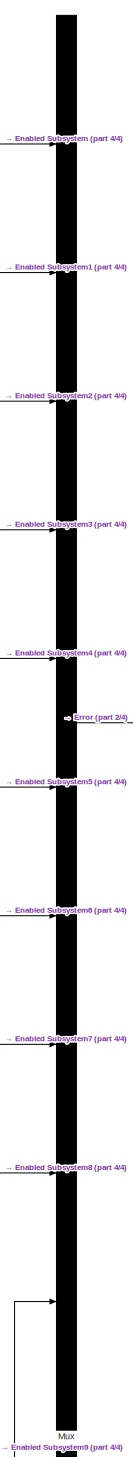
[diagram: Tx/Subsystem2 - part 1/4, top right region]
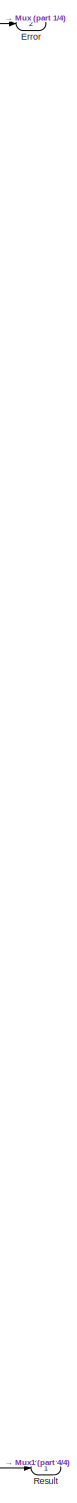
[diagram: Tx/Subsystem2 - part 2/4, middle right region]
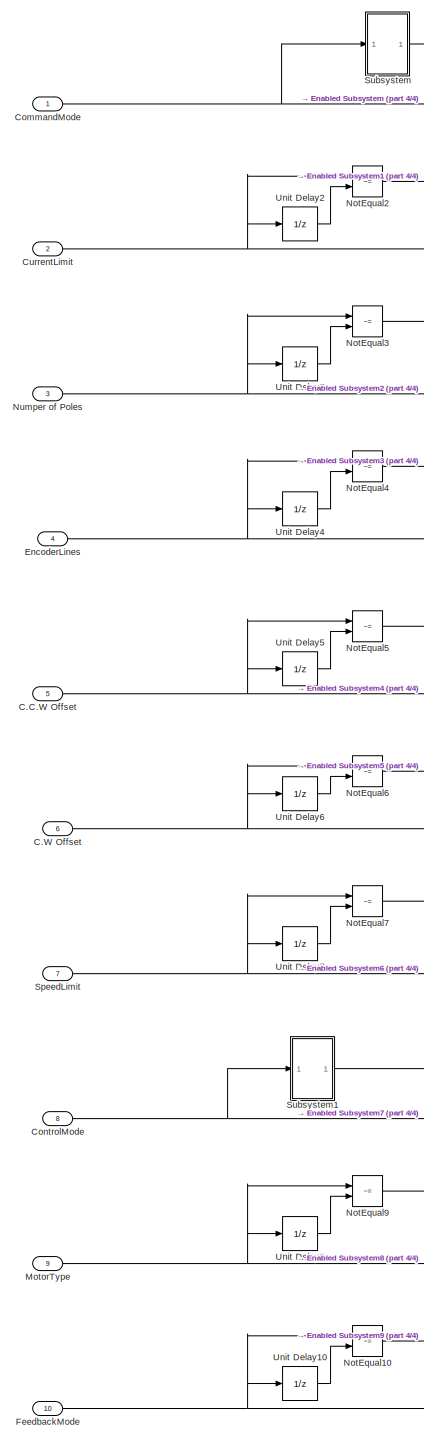
[diagram: Tx/Subsystem2 - part 3/4, bottom left region]
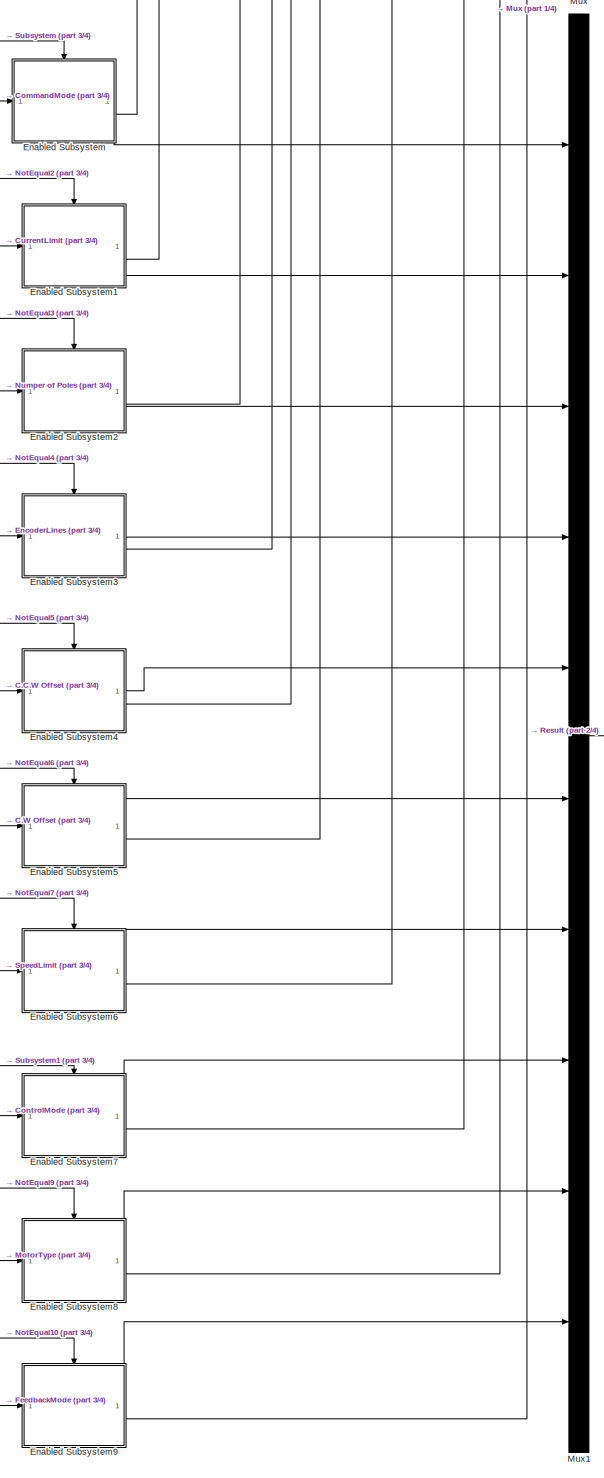
[diagram: Tx/Subsystem2 - part 4/4, bottom center region]
BLOCK [SubSystem] Tx/Subsystem2
BLOCK [Inport] Tx/Subsystem2/C.C.W Offset
  Port = 5
BLOCK [Inport] Tx/Subsystem2/C.W Offset
  Port = 6
BLOCK [Inport] Tx/Subsystem2/CommandMode
BLOCK [Inport] Tx/Subsystem2/ControlMode
  Port = 8
BLOCK [Inport] Tx/Subsystem2/CurrentLimit
  Port = 2
BLOCK [SubSystem] Tx/Subsystem2/Enabled Subsystem
  TreatAsAtomicUnit = on
BLOCK [Inport] Tx/Subsystem2/Enabled Subsystem/CommandMode
BLOCK [Constant] Tx/Subsystem2/Enabled Subsystem/Constant6
  OutDataTypeStr = Inherit: Inherit via back propagation
  Value = 0
BLOCK [EnablePort] Tx/Subsystem2/Enabled Subsystem/Enable
BLOCK [Outport] Tx/Subsystem2/Enabled Subsystem/Error
  Port = 2
BLOCK [Outport] Tx/Subsystem2/Enabled Subsystem/Result
BLOCK [SubSystem] Tx/Subsystem2/Enabled Subsystem/SetCommandMode
BLOCK [Inport] Tx/Subsystem2/Enabled Subsystem/SetCommandMode/Address
  LockScale = on
  OutDataTypeStr = uint8
BLOCK [Outport] Tx/Subsystem2/Enabled Subsystem/SetCommandMode/Error
  Port = 2
BLOCK [Outport] Tx/Subsystem2/Enabled Subsystem/SetCommandMode/Result
  OutDataTypeStr = boolean
BLOCK [S-Function] Tx/Subsystem2/Enabled Subsystem/SetCommandMode/S-Function Builder2
  CopyFcn = set_param(gcbh,'LinkStatus','none')
  EnableBusSupport = off
  FunctionName = SetCommandMode
  OpenFcn = sfunctionwizard(gcbh)
  Priority = 2
  SFcnIsStateOwnerBlock = off
  SFunctionDeploymentMode = off
  SFunctionModules = SetCommandMode_wrapper
BLOCK [Inport] Tx/Subsystem2/Enabled Subsystem/SetCommandMode/Value
  LockScale = on
  OutDataTypeStr = boolean
  Port = 2
BLOCK [SubSystem] Tx/Subsystem2/Enabled Subsystem1
  TreatAsAtomicUnit = on
BLOCK [Constant] Tx/Subsystem2/Enabled Subsystem1/Constant6
  OutDataTypeStr = uint8
  Value = 0
BLOCK [Inport] Tx/Subsystem2/Enabled Subsystem1/CurrentLimit
BLOCK [EnablePort] Tx/Subsystem2/Enabled Subsystem1/Enable
BLOCK [Outport] Tx/Subsystem2/Enabled Subsystem1/Error
  Port = 2
BLOCK [Outport] Tx/Subsystem2/Enabled Subsystem1/Result
BLOCK [SubSystem] Tx/Subsystem2/Enabled Subsystem1/SetCurrentLimit
BLOCK [Inport] Tx/Subsystem2/Enabled Subsystem1/SetCurrentLimit/Address
  IconDisplay = Signal name
  LockScale = on
  Tag = Address
BLOCK [Display] Tx/Subsystem2/Enabled Subsystem1/SetCurrentLimit/Display1
  Decimation = 1
  Format = decimal (Stored Integer)
BLOCK [Display] Tx/Subsystem2/Enabled Subsystem1/SetCurrentLimit/Display10
  Decimation = 1
  Format = decimal (Stored Integer)
BLOCK [Outport] Tx/Subsystem2/Enabled Subsystem1/SetCurrentLimit/Error
  IconDisplay = Signal name
  OutDataTypeStr = int32
  Port = 2
BLOCK [Outport] Tx/Subsystem2/Enabled Subsystem1/SetCurrentLimit/Result
  IconDisplay = Signal name
  OutDataTypeStr = boolean
BLOCK [S-Function] Tx/Subsystem2/Enabled Subsystem1/SetCurrentLimit/S-Function Builder
  CopyFcn = set_param(gcbh,'LinkStatus','none')
  EnableBusSupport = off
  FunctionName = SetCurrentLimit
  OpenFcn = sfunctionwizard(gcbh)
  Priority = 2
  SFcnIsStateOwnerBlock = off
  SFunctionDeploymentMode = off
  SFunctionModules = SetCurrentLimit_wrapper
BLOCK [Inport] Tx/Subsystem2/Enabled Subsystem1/SetCurrentLimit/Value
  IconDisplay = Port number and signal name
  LockScale = on
  Port = 2
BLOCK [SubSystem] Tx/Subsystem2/Enabled Subsystem2
  TreatAsAtomicUnit = on
BLOCK [Constant] Tx/Subsystem2/Enabled Subsystem2/Constant6
  OutDataTypeStr = uint8
  Value = 0
BLOCK [EnablePort] Tx/Subsystem2/Enabled Subsystem2/Enable
BLOCK [Outport] Tx/Subsystem2/Enabled Subsystem2/Error
  Port = 2
BLOCK [Inport] Tx/Subsystem2/Enabled Subsystem2/Number of Poles
BLOCK [Outport] Tx/Subsystem2/Enabled Subsystem2/Result
BLOCK [SubSystem] Tx/Subsystem2/Enabled Subsystem2/SetMotorPoleCounts
BLOCK [Inport] Tx/Subsystem2/Enabled Subsystem2/SetMotorPoleCounts/Address
BLOCK [Display] Tx/Subsystem2/Enabled Subsystem2/SetMotorPoleCounts/Display36
  Decimation = 1
  Format = decimal (Stored Integer)
BLOCK [Display] Tx/Subsystem2/Enabled Subsystem2/SetMotorPoleCounts/Display37
  Decimation = 1
  Format = decimal (Stored Integer)
BLOCK [Outport] Tx/Subsystem2/Enabled Subsystem2/SetMotorPoleCounts/Error
  Port = 2
BLOCK [Outport] Tx/Subsystem2/Enabled Subsystem2/SetMotorPoleCounts/Result
BLOCK [S-Function] Tx/Subsystem2/Enabled Subsystem2/SetMotorPoleCounts/S-Function Builder18
  CopyFcn = set_param(gcbh,'LinkStatus','none')
  EnableBusSupport = off
  FunctionName = SetMotorPolesCounts
  OpenFcn = sfunctionwizard(gcbh)
  Priority = 2
  SFcnIsStateOwnerBlock = off
  SFunctionDeploymentMode = off
  SFunctionModules = SetMotorPolesCounts_wrapper
BLOCK [Inport] Tx/Subsystem2/Enabled Subsystem2/SetMotorPoleCounts/Value
  Port = 2
BLOCK [SubSystem] Tx/Subsystem2/Enabled Subsystem3
  TreatAsAtomicUnit = on
BLOCK [Constant] Tx/Subsystem2/Enabled Subsystem3/Constant6
  OutDataTypeStr = uint8
  Value = 0
BLOCK [EnablePort] Tx/Subsystem2/Enabled Subsystem3/Enable
BLOCK [Inport] Tx/Subsystem2/Enabled Subsystem3/EncoderLines
BLOCK [Outport] Tx/Subsystem2/Enabled Subsystem3/Error
  Port = 2
BLOCK [Outport] Tx/Subsystem2/Enabled Subsystem3/Result
BLOCK [SubSystem] Tx/Subsystem2/Enabled Subsystem3/SetEncoderLines
BLOCK [Inport] Tx/Subsystem2/Enabled Subsystem3/SetEncoderLines/Address
BLOCK [Display] Tx/Subsystem2/Enabled Subsystem3/SetEncoderLines/Display38
  Decimation = 1
  Format = decimal (Stored Integer)
BLOCK [Display] Tx/Subsystem2/Enabled Subsystem3/SetEncoderLines/Display39
  Decimation = 1
  Format = decimal (Stored Integer)
BLOCK [Outport] Tx/Subsystem2/Enabled Subsystem3/SetEncoderLines/Error
  Port = 2
BLOCK [Outport] Tx/Subsystem2/Enabled Subsystem3/SetEncoderLines/Result
BLOCK [S-Function] Tx/Subsystem2/Enabled Subsystem3/SetEncoderLines/S-Function Builder19
  CopyFcn = set_param(gcbh,'LinkStatus','none')
  EnableBusSupport = off
  FunctionName = SetIncrementalEncoderLines
  OpenFcn = sfunctionwizard(gcbh)
  Priority = 2
  SFcnIsStateOwnerBlock = off
  SFunctionDeploymentMode = off
  SFunctionModules = SetIncrementalEncoderLines_wrapper
BLOCK [Inport] Tx/Subsystem2/Enabled Subsystem3/SetEncoderLines/Value
  Port = 2
BLOCK [SubSystem] Tx/Subsystem2/Enabled Subsystem4
  TreatAsAtomicUnit = on
BLOCK [Inport] Tx/Subsystem2/Enabled Subsystem4/C.C.W Offset
BLOCK [Constant] Tx/Subsystem2/Enabled Subsystem4/Constant6
  OutDataTypeStr = uint8
  Value = 0
BLOCK [EnablePort] Tx/Subsystem2/Enabled Subsystem4/Enable
BLOCK [Outport] Tx/Subsystem2/Enabled Subsystem4/Error
  Port = 2
BLOCK [Outport] Tx/Subsystem2/Enabled Subsystem4/Result
BLOCK [SubSystem] Tx/Subsystem2/Enabled Subsystem4/SetEncoderHallCcwOffset
BLOCK [Inport] Tx/Subsystem2/Enabled Subsystem4/SetEncoderHallCcwOffset/Address
BLOCK [Display] Tx/Subsystem2/Enabled Subsystem4/SetEncoderHallCcwOffset/Display84
  Decimation = 1
  Format = decimal (Stored Integer)
BLOCK [Display] Tx/Subsystem2/Enabled Subsystem4/SetEncoderHallCcwOffset/Display85
  Decimation = 1
  Format = decimal (Stored Integer)
BLOCK [Outport] Tx/Subsystem2/Enabled Subsystem4/SetEncoderHallCcwOffset/Error
  Port = 2
BLOCK [Outport] Tx/Subsystem2/Enabled Subsystem4/SetEncoderHallCcwOffset/Result
BLOCK [S-Function] Tx/Subsystem2/Enabled Subsystem4/SetEncoderHallCcwOffset/S-Function Builder42
  CopyFcn = set_param(gcbh,'LinkStatus','none')
  EnableBusSupport = off
  FunctionName = SetEncoderHallCcwOffset
  OpenFcn = sfunctionwizard(gcbh)
  Priority = 2
  SFcnIsStateOwnerBlock = off
  SFunctionDeploymentMode = off
  SFunctionModules = SetEncoderHallCcwOffset_wrapper
BLOCK [Inport] Tx/Subsystem2/Enabled Subsystem4/SetEncoderHallCcwOffset/Value
  Port = 2
BLOCK [SubSystem] Tx/Subsystem2/Enabled Subsystem5
  TreatAsAtomicUnit = on
BLOCK [Inport] Tx/Subsystem2/Enabled Subsystem5/C.W Offset
BLOCK [Constant] Tx/Subsystem2/Enabled Subsystem5/Constant6
  OutDataTypeStr = uint8
  Value = 0
BLOCK [EnablePort] Tx/Subsystem2/Enabled Subsystem5/Enable
BLOCK [Outport] Tx/Subsystem2/Enabled Subsystem5/Error
  Port = 2
BLOCK [Outport] Tx/Subsystem2/Enabled Subsystem5/Result
BLOCK [SubSystem] Tx/Subsystem2/Enabled Subsystem5/SetEncoderHallCwOffset
BLOCK [Inport] Tx/Subsystem2/Enabled Subsystem5/SetEncoderHallCwOffset/Address
BLOCK [Outport] Tx/Subsystem2/Enabled Subsystem5/SetEncoderHallCwOffset/Error
  Port = 2
BLOCK [Outport] Tx/Subsystem2/Enabled Subsystem5/SetEncoderHallCwOffset/Result
BLOCK [S-Function] Tx/Subsystem2/Enabled Subsystem5/SetEncoderHallCwOffset/S-Function Builder43
  CopyFcn = set_param(gcbh,'LinkStatus','none')
  EnableBusSupport = off
  FunctionName = SetEncoderHallCwOffset
  OpenFcn = sfunctionwizard(gcbh)
  Priority = 2
  SFcnIsStateOwnerBlock = off
  SFunctionDeploymentMode = off
  SFunctionModules = SetEncoderHallCwOffset_wrapper
BLOCK [Inport] Tx/Subsystem2/Enabled Subsystem5/SetEncoderHallCwOffset/Value
  Port = 2
BLOCK [SubSystem] Tx/Subsystem2/Enabled Subsystem6
  TreatAsAtomicUnit = on
BLOCK [Constant] Tx/Subsystem2/Enabled Subsystem6/Constant6
  OutDataTypeStr = uint8
  Value = 0
BLOCK [EnablePort] Tx/Subsystem2/Enabled Subsystem6/Enable
BLOCK [Outport] Tx/Subsystem2/Enabled Subsystem6/Error
  Port = 2
BLOCK [Outport] Tx/Subsystem2/Enabled Subsystem6/Result
BLOCK [SubSystem] Tx/Subsystem2/Enabled Subsystem6/SetSpeedLimit
BLOCK [Inport] Tx/Subsystem2/Enabled Subsystem6/SetSpeedLimit/Address
BLOCK [Display] Tx/Subsystem2/Enabled Subsystem6/SetSpeedLimit/Display40
  Decimation = 1
  Format = decimal (Stored Integer)
BLOCK [Display] Tx/Subsystem2/Enabled Subsystem6/SetSpeedLimit/Display41
  Decimation = 1
  Format = decimal (Stored Integer)
BLOCK [Outport] Tx/Subsystem2/Enabled Subsystem6/SetSpeedLimit/Error
  Port = 2
BLOCK [Outport] Tx/Subsystem2/Enabled Subsystem6/SetSpeedLimit/Result
BLOCK [S-Function] Tx/Subsystem2/Enabled Subsystem6/SetSpeedLimit/S-Function Builder20
  CopyFcn = set_param(gcbh,'LinkStatus','none')
  EnableBusSupport = off
  FunctionName = SetSpeedLimit
  OpenFcn = sfunctionwizard(gcbh)
  Priority = 2
  SFcnIsStateOwnerBlock = off
  SFunctionDeploymentMode = off
  SFunctionModules = SetSpeedLimit_wrapper
BLOCK [Inport] Tx/Subsystem2/Enabled Subsystem6/SetSpeedLimit/Value
  Port = 2
BLOCK [Inport] Tx/Subsystem2/Enabled Subsystem6/SpeedLimit
BLOCK [SubSystem] Tx/Subsystem2/Enabled Subsystem7
  TreatAsAtomicUnit = on
BLOCK [Constant] Tx/Subsystem2/Enabled Subsystem7/Constant6
  OutDataTypeStr = uint8
  Value = 0
BLOCK [Inport] Tx/Subsystem2/Enabled Subsystem7/ControlMode
BLOCK [EnablePort] Tx/Subsystem2/Enabled Subsystem7/Enable
BLOCK [Outport] Tx/Subsystem2/Enabled Subsystem7/Error
  Port = 2
BLOCK [Outport] Tx/Subsystem2/Enabled Subsystem7/Result
BLOCK [SubSystem] Tx/Subsystem2/Enabled Subsystem7/SetControlMode
BLOCK [Inport] Tx/Subsystem2/Enabled Subsystem7/SetControlMode/Address
BLOCK [Outport] Tx/Subsystem2/Enabled Subsystem7/SetControlMode/Error
  Port = 2
BLOCK [Outport] Tx/Subsystem2/Enabled Subsystem7/SetControlMode/Result
BLOCK [S-Function] Tx/Subsystem2/Enabled Subsystem7/SetControlMode/S-Function Builder25
  CopyFcn = set_param(gcbh,'LinkStatus','none')
  EnableBusSupport = off
  FunctionName = SetControlMode
  OpenFcn = sfunctionwizard(gcbh)
  Priority = 2
  SFcnIsStateOwnerBlock = off
  SFunctionDeploymentMode = off
  SFunctionModules = SetControlMode_wrapper
BLOCK [Inport] Tx/Subsystem2/Enabled Subsystem7/SetControlMode/Value
  Port = 2
BLOCK [SubSystem] Tx/Subsystem2/Enabled Subsystem8
  TreatAsAtomicUnit = on
BLOCK [Constant] Tx/Subsystem2/Enabled Subsystem8/Constant6
  OutDataTypeStr = uint8
  Value = 0
BLOCK [EnablePort] Tx/Subsystem2/Enabled Subsystem8/Enable
BLOCK [Outport] Tx/Subsystem2/Enabled Subsystem8/Error
  Port = 2
BLOCK [Inport] Tx/Subsystem2/Enabled Subsystem8/MotorType
BLOCK [Outport] Tx/Subsystem2/Enabled Subsystem8/Result
BLOCK [SubSystem] Tx/Subsystem2/Enabled Subsystem8/SetMotorType
BLOCK [Inport] Tx/Subsystem2/Enabled Subsystem8/SetMotorType/Address
BLOCK [Display] Tx/Subsystem2/Enabled Subsystem8/SetMotorType/Display46
  Decimation = 1
  Format = decimal (Stored Integer)
BLOCK [Display] Tx/Subsystem2/Enabled Subsystem8/SetMotorType/Display47
  Decimation = 1
  Format = decimal (Stored Integer)
BLOCK [Outport] Tx/Subsystem2/Enabled Subsystem8/SetMotorType/Error
  Port = 2
BLOCK [Outport] Tx/Subsystem2/Enabled Subsystem8/SetMotorType/Result
BLOCK [S-Function] Tx/Subsystem2/Enabled Subsystem8/SetMotorType/S-Function Builder23
  CopyFcn = set_param(gcbh,'LinkStatus','none')
  EnableBusSupport = off
  FunctionName = SetMotorType
  OpenFcn = sfunctionwizard(gcbh)
  Priority = 2
  SFcnIsStateOwnerBlock = off
  SFunctionDeploymentMode = off
  SFunctionModules = SetMotorType_wrapper
BLOCK [Inport] Tx/Subsystem2/Enabled Subsystem8/SetMotorType/Value
  Port = 2
BLOCK [SubSystem] Tx/Subsystem2/Enabled Subsystem9
  TreatAsAtomicUnit = on
BLOCK [Constant] Tx/Subsystem2/Enabled Subsystem9/Constant6
  OutDataTypeStr = uint8
  Value = 0
BLOCK [EnablePort] Tx/Subsystem2/Enabled Subsystem9/Enable
BLOCK [Outport] Tx/Subsystem2/Enabled Subsystem9/Error
  Port = 2
BLOCK [Inport] Tx/Subsystem2/Enabled Subsystem9/FeedbackMode
BLOCK [Outport] Tx/Subsystem2/Enabled Subsystem9/Result
BLOCK [SubSystem] Tx/Subsystem2/Enabled Subsystem9/SetFeedBackControlMode
BLOCK [Inport] Tx/Subsystem2/Enabled Subsystem9/SetFeedBackControlMode/Address
BLOCK [Outport] Tx/Subsystem2/Enabled Subsystem9/SetFeedBackControlMode/Error
  Port = 2
BLOCK [Outport] Tx/Subsystem2/Enabled Subsystem9/SetFeedBackControlMode/Result
BLOCK [S-Function] Tx/Subsystem2/Enabled Subsystem9/SetFeedBackControlMode/S-Function Builder21
  CopyFcn = set_param(gcbh,'LinkStatus','none')
  EnableBusSupport = off
  FunctionName = SetFeedbackControlMode
  OpenFcn = sfunctionwizard(gcbh)
  Priority = 2
  SFcnIsStateOwnerBlock = off
  SFunctionDeploymentMode = off
  SFunctionModules = SetFeedbackControlMode_wrapper
BLOCK [Inport] Tx/Subsystem2/Enabled Subsystem9/SetFeedBackControlMode/Value
  Port = 2
BLOCK [Inport] Tx/Subsystem2/EncoderLines
  Port = 4
BLOCK [Outport] Tx/Subsystem2/Error
  NameLocation = top
  Port = 2
BLOCK [Inport] Tx/Subsystem2/FeedbackMode
  Port = 10
BLOCK [Inport] Tx/Subsystem2/MotorType
  Port = 9
BLOCK [Mux] Tx/Subsystem2/Mux
  DisplayOption = bar
  Inputs = 10
BLOCK [Mux] Tx/Subsystem2/Mux1
  DisplayOption = bar
  Inputs = 10
BLOCK [RelationalOperator] Tx/Subsystem2/NotEqual10
  InputSameDT = off
  Operator = ~=
  OutDataTypeStr = boolean
  RndMeth = Simplest
BLOCK [RelationalOperator] Tx/Subsystem2/NotEqual2
  InputSameDT = off
  Operator = ~=
  OutDataTypeStr = boolean
  RndMeth = Simplest
BLOCK [RelationalOperator] Tx/Subsystem2/NotEqual3
  InputSameDT = off
  Operator = ~=
  OutDataTypeStr = boolean
  RndMeth = Simplest
BLOCK [RelationalOperator] Tx/Subsystem2/NotEqual4
  InputSameDT = off
  Operator = ~=
  OutDataTypeStr = boolean
  RndMeth = Simplest
BLOCK [RelationalOperator] Tx/Subsystem2/NotEqual5
  InputSameDT = off
  Operator = ~=
  OutDataTypeStr = boolean
  RndMeth = Simplest
BLOCK [RelationalOperator] Tx/Subsystem2/NotEqual6
  InputSameDT = off
  Operator = ~=
  OutDataTypeStr = boolean
  RndMeth = Simplest
BLOCK [RelationalOperator] Tx/Subsystem2/NotEqual7
  InputSameDT = off
  Operator = ~=
  OutDataTypeStr = boolean
  RndMeth = Simplest
BLOCK [RelationalOperator] Tx/Subsystem2/NotEqual9
  InputSameDT = off
  Operator = ~=
  OutDataTypeStr = boolean
  RndMeth = Simplest
BLOCK [Inport] Tx/Subsystem2/Numper of Poles
  Port = 3
BLOCK [Outport] Tx/Subsystem2/Result
BLOCK [Inport] Tx/Subsystem2/SpeedLimit
  Port = 7
BLOCK [SubSystem] Tx/Subsystem2/Subsystem
BLOCK [Constant] Tx/Subsystem2/Subsystem/Constant8
  OutDataTypeStr = uint8
  Value = 0
BLOCK [RelationalOperator] Tx/Subsystem2/Subsystem/Equal1
  InputSameDT = off
  Operator = ~=
  OutDataTypeStr = boolean
  RndMeth = Simplest
BLOCK [SubSystem] Tx/Subsystem2/Subsystem/GetCommandMode
BLOCK [Inport] Tx/Subsystem2/Subsystem/GetCommandMode/Address
BLOCK [Outport] Tx/Subsystem2/Subsystem/GetCommandMode/Error
  Port = 2
BLOCK [Outport] Tx/Subsystem2/Subsystem/GetCommandMode/Result
BLOCK [S-Function] Tx/Subsystem2/Subsystem/GetCommandMode/S-Function Builder3
  CopyFcn = set_param(gcbh,'LinkStatus','none')
  EnableBusSupport = off
  FunctionName = GetCommandMode
  OpenFcn = sfunctionwizard(gcbh)
  Priority = 3
  SFcnIsStateOwnerBlock = off
  SFunctionDeploymentMode = off
  SFunctionModules = GetCommandMode_wrapper
BLOCK [Inport] Tx/Subsystem2/Subsystem/In1
BLOCK [InportShadow] Tx/Subsystem2/Subsystem/In2
BLOCK [RelationalOperator] Tx/Subsystem2/Subsystem/NotEqual1
  InputSameDT = off
  Operator = ~=
  OutDataTypeStr = boolean
  RndMeth = Simplest
BLOCK [Logic] Tx/Subsystem2/Subsystem/OR1
  AllPortsSameDT = off
  IconShape = distinctive
  Operator = OR
  OutDataTypeStr = boolean
BLOCK [Outport] Tx/Subsystem2/Subsystem/Out2
BLOCK [Terminator] Tx/Subsystem2/Subsystem/Terminator
BLOCK [UnitDelay] Tx/Subsystem2/Subsystem/Unit Delay1
  HasFrameUpgradeWarning = on
  InitialCondition = 2.1651
  SampleTime = -1
BLOCK [SubSystem] Tx/Subsystem2/Subsystem1
BLOCK [Constant] Tx/Subsystem2/Subsystem1/Constant111
  OutDataTypeStr = uint8
  Value = 0
BLOCK [RelationalOperator] Tx/Subsystem2/Subsystem1/Equal
  InputSameDT = off
  Operator = ~=
  OutDataTypeStr = boolean
  RndMeth = Simplest
BLOCK [SubSystem] Tx/Subsystem2/Subsystem1/GetControlMode
BLOCK [Inport] Tx/Subsystem2/Subsystem1/GetControlMode/Address
BLOCK [Outport] Tx/Subsystem2/Subsystem1/GetControlMode/Error
  Port = 2
BLOCK [Outport] Tx/Subsystem2/Subsystem1/GetControlMode/Result
BLOCK [S-Function] Tx/Subsystem2/Subsystem1/GetControlMode/S-Function Builder69
  CopyFcn = set_param(gcbh,'LinkStatus','none')
  EnableBusSupport = off
  FunctionName = GetControlMode
  OpenFcn = sfunctionwizard(gcbh)
  Priority = 3
  SFcnIsStateOwnerBlock = off
  SFunctionDeploymentMode = off
  SFunctionModules = GetControlMode_wrapper
BLOCK [Inport] Tx/Subsystem2/Subsystem1/In1
BLOCK [InportShadow] Tx/Subsystem2/Subsystem1/In2
BLOCK [RelationalOperator] Tx/Subsystem2/Subsystem1/NotEqual8
  InputSameDT = off
  Operator = ~=
  OutDataTypeStr = boolean
  RndMeth = Simplest
BLOCK [Logic] Tx/Subsystem2/Subsystem1/OR
  AllPortsSameDT = off
  IconShape = distinctive
  Operator = OR
  OutDataTypeStr = boolean
BLOCK [Outport] Tx/Subsystem2/Subsystem1/Out1
BLOCK [Terminator] Tx/Subsystem2/Subsystem1/Terminator
BLOCK [UnitDelay] Tx/Subsystem2/Subsystem1/Unit Delay8
  HasFrameUpgradeWarning = on
  InitialCondition = 2.1651
  SampleTime = -1
BLOCK [UnitDelay] Tx/Subsystem2/Unit Delay10
  HasFrameUpgradeWarning = on
  InitialCondition = 2.1651
  SampleTime = -1
BLOCK [UnitDelay] Tx/Subsystem2/Unit Delay2
  HasFrameUpgradeWarning = on
  InitialCondition = 2.1651
  SampleTime = -1
BLOCK [UnitDelay] Tx/Subsystem2/Unit Delay3
  HasFrameUpgradeWarning = on
  InitialCondition = 2.1651
  SampleTime = -1
BLOCK [UnitDelay] Tx/Subsystem2/Unit Delay4
  HasFrameUpgradeWarning = on
  InitialCondition = 2.1651
  SampleTime = -1
BLOCK [UnitDelay] Tx/Subsystem2/Unit Delay5
  HasFrameUpgradeWarning = on
  InitialCondition = 2.1651
  SampleTime = -1
BLOCK [UnitDelay] Tx/Subsystem2/Unit Delay6
  HasFrameUpgradeWarning = on
  InitialCondition = 2.1651
  SampleTime = -1
BLOCK [UnitDelay] Tx/Subsystem2/Unit Delay7
  HasFrameUpgradeWarning = on
  InitialCondition = 2.1651
  SampleTime = -1
BLOCK [UnitDelay] Tx/Subsystem2/Unit Delay9
  HasFrameUpgradeWarning = on
  InitialCondition = 2.1651
  SampleTime = -1
BLOCK [Constant] USB
  OutDataTypeStr = uint8
ANNOTATION (root): SOLO Motor Controllers Speed Control of PMSM/BLDC with Incremental Encoders
ANNOTATION (root): Command Mode
ANNOTATION (root): Feedback Mode
ANNOTATION (root): Motor Type
ANNOTATION (root): Controller Gains
ANNOTATION (root): Refrence
ANNOTATION Tx/Subsystem1/Enabled Subsystem10/EmergencyStop1: Error
NET Calibration\Identification/AND1:1 -> Calibration\Identification/Data Type Conversion:1, Calibration\Identification/Enabled Subsystem1:enable
NET Calibration\Identification/AND:1 -> Calibration\Identification/Enabled Subsystem:1, Calibration\Identification/Enabled Subsystem:enable
LINE Calibration\Identification/Data Store Read1:1 -> Calibration\Identification/NOT:1
LINE Calibration\Identification/Data Store Read2:1 -> Calibration\Identification/NOT1:1
LINE Calibration\Identification/Data Store Read3:1 -> Calibration\Identification/AND1:1
LINE Calibration\Identification/Data Store Read4:1 -> Calibration\Identification/Product:2
LINE Calibration\Identification/Data Store Read:1 -> Calibration\Identification/AND:1
LINE Calibration\Identification/Data Type Conversion:1 -> Calibration\Identification/Product:1
LINE Calibration\Identification/Enabled Subsystem/Constant21:1 -> Calibration\Identification/Enabled Subsystem/MotorParameterIdentification:1
LINE Calibration\Identification/Enabled Subsystem/In1:1 -> Calibration\Identification/Enabled Subsystem/MotorParameterIdentification:2
LINE Calibration\Identification/Enabled Subsystem/MotorParameterIdentification/Address:1 -> Calibration\Identification/Enabled Subsystem/MotorParameterIdentification/S-Function Builder10:1
NET Calibration\Identification/Enabled Subsystem/MotorParameterIdentification/S-Function Builder10:1 -> Calibration\Identification/Enabled Subsystem/MotorParameterIdentification/Display20:1, Calibration\Identification/Enabled Subsystem/MotorParameterIdentification/Result:1
NET Calibration\Identification/Enabled Subsystem/MotorParameterIdentification/S-Function Builder10:2 -> Calibration\Identification/Enabled Subsystem/MotorParameterIdentification/Display21:1, Calibration\Identification/Enabled Subsystem/MotorParameterIdentification/Error:1
LINE Calibration\Identification/Enabled Subsystem/MotorParameterIdentification/Value:1 -> Calibration\Identification/Enabled Subsystem/MotorParameterIdentification/S-Function Builder10:2
LINE Calibration\Identification/Enabled Subsystem/MotorParameterIdentification:1 -> Calibration\Identification/Enabled Subsystem/Result:1
LINE Calibration\Identification/Enabled Subsystem/MotorParameterIdentification:2 -> Calibration\Identification/Enabled Subsystem/Error:1
LINE Calibration\Identification/Enabled Subsystem1/Constant21:1 -> Calibration\Identification/Enabled Subsystem1/SensorCallibration:1
LINE Calibration\Identification/Enabled Subsystem1/Data Type Conversion:1 -> Calibration\Identification/Enabled Subsystem1/SensorCallibration:2
LINE Calibration\Identification/Enabled Subsystem1/In1:1 -> Calibration\Identification/Enabled Subsystem1/Data Type Conversion:1
LINE Calibration\Identification/Enabled Subsystem1/SensorCallibration/Address:1 -> Calibration\Identification/Enabled Subsystem1/SensorCallibration/S-Function Builder41:1
LINE Calibration\Identification/Enabled Subsystem1/SensorCallibration/S-Function Builder41:1 -> Calibration\Identification/Enabled Subsystem1/SensorCallibration/Result:1
LINE Calibration\Identification/Enabled Subsystem1/SensorCallibration/S-Function Builder41:2 -> Calibration\Identification/Enabled Subsystem1/SensorCallibration/Error:1
LINE Calibration\Identification/Enabled Subsystem1/SensorCallibration/Value:1 -> Calibration\Identification/Enabled Subsystem1/SensorCallibration/S-Function Builder41:2
LINE Calibration\Identification/Enabled Subsystem1/SensorCallibration:1 -> Calibration\Identification/Enabled Subsystem1/Result:1
LINE Calibration\Identification/Enabled Subsystem1/SensorCallibration:2 -> Calibration\Identification/Enabled Subsystem1/Error:1
LINE Calibration\Identification/Enabled Subsystem1:1 -> Calibration\Identification/Mux:2
LINE Calibration\Identification/Enabled Subsystem1:2 -> Calibration\Identification/Mux1:2
LINE Calibration\Identification/Enabled Subsystem:1 -> Calibration\Identification/Mux:1
LINE Calibration\Identification/Enabled Subsystem:2 -> Calibration\Identification/Mux1:1
LINE Calibration\Identification/Mux1:1 -> Calibration\Identification/Error:1
LINE Calibration\Identification/Mux:1 -> Calibration\Identification/Result:1
LINE Calibration\Identification/NOT1:1 -> Calibration\Identification/AND1:2
LINE Calibration\Identification/NOT:1 -> Calibration\Identification/AND:2
LINE Calibration\Identification/Product:1 -> Calibration\Identification/Enabled Subsystem1:1
LINE Constant2:1 -> Subsystem1:4
LINE Constant3:1 -> Subsystem1:5
LINE Constant4:1 -> Subsystem1:6
LINE Constant5:1 -> Subsystem1:1
LINE Data Store Read2:1 -> Subsystem1:enable
NET Rx/Constant:1 -> Rx/Subsystem1:enable, Rx/Subsystem2:enable, Rx/Subsystem3:enable
LINE Rx/Subsystem1/Constant120:1 -> Rx/Subsystem1/GetPositionCountsFeedback:1
LINE Rx/Subsystem1/GetPositionCountsFeedback/Address:1 -> Rx/Subsystem1/GetPositionCountsFeedback/S-Function Builder73:1
LINE Rx/Subsystem1/GetPositionCountsFeedback/S-Function Builder73:1 -> Rx/Subsystem1/GetPositionCountsFeedback/Result:1
LINE Rx/Subsystem1/GetPositionCountsFeedback/S-Function Builder73:2 -> Rx/Subsystem1/GetPositionCountsFeedback/Error:1
LINE Rx/Subsystem1/GetPositionCountsFeedback:1 -> Rx/Subsystem1/Position Counter:1
LINE Rx/Subsystem1/GetPositionCountsFeedback:2 -> Rx/Subsystem1/Error:1
LINE Rx/Subsystem1:1 -> Rx/Position Counter:1
LINE Rx/Subsystem2/Constant120:1 -> Rx/Subsystem2/GetSpeedFeedback:1
LINE Rx/Subsystem2/GetSpeedFeedback/Address:1 -> Rx/Subsystem2/GetSpeedFeedback/S-Function Builder66:1
LINE Rx/Subsystem2/GetSpeedFeedback/S-Function Builder66:1 -> Rx/Subsystem2/GetSpeedFeedback/Result:1
LINE Rx/Subsystem2/GetSpeedFeedback/S-Function Builder66:2 -> Rx/Subsystem2/GetSpeedFeedback/Error:1
LINE Rx/Subsystem2/GetSpeedFeedback:1 -> Rx/Subsystem2/Speed:1
LINE Rx/Subsystem2/GetSpeedFeedback:2 -> Rx/Subsystem2/Error:1
LINE Rx/Subsystem2:1 -> Rx/Speed:1
LINE Rx/Subsystem3/Constant120:1 -> Rx/Subsystem3/GetQuadratureCurrentIqFeedback:1
LINE Rx/Subsystem3/GetQuadratureCurrentIqFeedback/Address:1 -> Rx/Subsystem3/GetQuadratureCurrentIqFeedback/S-Function Builder57:1
LINE Rx/Subsystem3/GetQuadratureCurrentIqFeedback/S-Function Builder57:1 -> Rx/Subsystem3/GetQuadratureCurrentIqFeedback/Result:1
LINE Rx/Subsystem3/GetQuadratureCurrentIqFeedback/S-Function Builder57:2 -> Rx/Subsystem3/GetQuadratureCurrentIqFeedback/Error:1
LINE Rx/Subsystem3/GetQuadratureCurrentIqFeedback:1 -> Rx/Subsystem3/Iq:1
LINE Rx/Subsystem3/GetQuadratureCurrentIqFeedback:2 -> Rx/Subsystem3/Error:1
LINE Rx/Subsystem3:1 -> Rx/Iq:1
LINE Rx:1 -> Scope:1
LINE Rx:2 -> Scope1:1
LINE Rx:3 -> Scope2:1
LINE String Constant1:1 -> String to ASCII1:1
LINE String to ASCII1:1 -> Subsystem1:3
LINE Subsystem1/Address:1 -> Subsystem1/Subsystem:1
LINE Subsystem1/Baud_Rate:1 -> Subsystem1/Subsystem:4
LINE Subsystem1/COM_Port:1 -> Subsystem1/Subsystem:3
LINE Subsystem1/ConnectionType:1 -> Subsystem1/Subsystem:2
LINE Subsystem1/Constant:1 -> Subsystem1/Equal:2
LINE Subsystem1/Equal:1 -> Subsystem1/Subsystem1:enable
LINE Subsystem1/Subsystem/Address1:1 -> Subsystem1/Subsystem/S-Function Builder1:1
LINE Subsystem1/Subsystem/Baud_Rate1:1 -> Subsystem1/Subsystem/S-Function Builder1:4
LINE Subsystem1/Subsystem/COM_Port1:1 -> Subsystem1/Subsystem/S-Function Builder1:3
LINE Subsystem1/Subsystem/ConnectionType:1 -> Subsystem1/Subsystem/S-Function Builder1:2
LINE Subsystem1/Subsystem/S-Function Builder1:1 -> Subsystem1/Subsystem/Result1:1
LINE Subsystem1/Subsystem/Time_out:1 -> Subsystem1/Subsystem/S-Function Builder1:5
LINE Subsystem1/Subsystem/Trails_on_Failure:1 -> Subsystem1/Subsystem/S-Function Builder1:6
LINE Subsystem1/Subsystem1/Constant1:1 -> Subsystem1/Subsystem1/Data Store Write:1
NET Subsystem1/Subsystem:1 -> Subsystem1/Display1:1, Subsystem1/Equal:1, Subsystem1/Result:1
LINE Subsystem1/Timeout:1 -> Subsystem1/Subsystem:5
LINE Subsystem1/Trials_on_Failure:1 -> Subsystem1/Subsystem:6
NET Subsystem1:1 -> Calibration\Identification:enable, Tx:enable
LINE Tx/C.C.W Offset:1 -> Tx/Subsystem2:5
LINE Tx/C.W Offset:1 -> Tx/Subsystem2:6
LINE Tx/Calibration:1 -> Tx/Data Store Write6:1
LINE Tx/CommandMode:1 -> Tx/Subsystem2:1
LINE Tx/Constant10:1 -> Tx/Subsystem1:1
LINE Tx/Constant14:1 -> Tx/Subsystem1:2
LINE Tx/Constant57:1 -> Tx/Subsystem1:3
LINE Tx/ControlMode:1 -> Tx/Subsystem2:8
LINE Tx/CurrentKi:1 -> Tx/Subsystem1:10
LINE Tx/CurrentKp:1 -> Tx/Subsystem1:9
LINE Tx/CurrentLimit:1 -> Tx/Subsystem2:2
LINE Tx/Data Store Read:1 -> Tx/Subsystem2:10
LINE Tx/Direction:1 -> Tx/Subsystem1:4
LINE Tx/EmergencyStop:1 -> Tx/Subsystem1:11
LINE Tx/Enable:1 -> Tx/Data Store Write4:1
LINE Tx/EncoderLines:1 -> Tx/Subsystem2:4
LINE Tx/FeedbackMode:1 -> Tx/Data Store Write1:1
LINE Tx/Identification:1 -> Tx/Data Store Write3:1
LINE Tx/MotorType:1 -> Tx/Subsystem2:9
LINE Tx/Numper of Poles:1 -> Tx/Subsystem2:3
LINE Tx/PositionKi:1 -> Tx/Subsystem1:8
LINE Tx/PositionKp:1 -> Tx/Subsystem1:7
LINE Tx/SpeedKi:1 -> Tx/Subsystem1:6
LINE Tx/SpeedKp:1 -> Tx/Subsystem1:5
LINE Tx/SpeedLimit:1 -> Tx/Subsystem2:7
NET Tx/Subsystem1/CurrentKi:1 -> Tx/Subsystem1/Enabled Subsystem9:1, Tx/Subsystem1/NotEqual10:1, Tx/Subsystem1/Unit Delay10:1
NET Tx/Subsystem1/CurrentKp:1 -> Tx/Subsystem1/Enabled Subsystem8:1, Tx/Subsystem1/NotEqual9:1, Tx/Subsystem1/Unit Delay9:1
NET Tx/Subsystem1/Data Store Read:1 -> Tx/Subsystem1/Data Type Conversion:1, Tx/Subsystem1/Product:2
LINE Tx/Subsystem1/Data Type Conversion2:1 -> Tx/Subsystem1/Enabled Subsystem3:1
NET Tx/Subsystem1/Data Type Conversion:1 -> Tx/Subsystem1/Product1:2, Tx/Subsystem1/Product2:2
NET Tx/Subsystem1/Direction:1 -> Tx/Subsystem1/Data Type Conversion2:1, Tx/Subsystem1/Subsystem:1
NET Tx/Subsystem1/EmergencyStop:1 -> Tx/Subsystem1/Enabled Subsystem10:1, Tx/Subsystem1/NotEqual11:1, Tx/Subsystem1/Unit Delay11:1
LINE Tx/Subsystem1/Enabled Subsystem/Constant:1 -> Tx/Subsystem1/Enabled Subsystem/SetTorqueReferenceIq:1
LINE Tx/Subsystem1/Enabled Subsystem/SetTorqueReferenceIq/Address:1 -> Tx/Subsystem1/Enabled Subsystem/SetTorqueReferenceIq/S-Function Builder4:1
NET Tx/Subsystem1/Enabled Subsystem/SetTorqueReferenceIq/S-Function Builder4:1 -> Tx/Subsystem1/Enabled Subsystem/SetTorqueReferenceIq/Display12:1, Tx/Subsystem1/Enabled Subsystem/SetTorqueReferenceIq/Result:1
NET Tx/Subsystem1/Enabled Subsystem/SetTorqueReferenceIq/S-Function Builder4:2 -> Tx/Subsystem1/Enabled Subsystem/SetTorqueReferenceIq/Display13:1, Tx/Subsystem1/Enabled Subsystem/SetTorqueReferenceIq/Error:1
LINE Tx/Subsystem1/Enabled Subsystem/SetTorqueReferenceIq/Value:1 -> Tx/Subsystem1/Enabled Subsystem/SetTorqueReferenceIq/S-Function Builder4:2
LINE Tx/Subsystem1/Enabled Subsystem/SetTorqueReferenceIq:1 -> Tx/Subsystem1/Enabled Subsystem/Result:1
LINE Tx/Subsystem1/Enabled Subsystem/SetTorqueReferenceIq:2 -> Tx/Subsystem1/Enabled Subsystem/Error:1
LINE Tx/Subsystem1/Enabled Subsystem/TorqueRef:1 -> Tx/Subsystem1/Enabled Subsystem/SetTorqueReferenceIq:2
LINE Tx/Subsystem1/Enabled Subsystem1/Constant:1 -> Tx/Subsystem1/Enabled Subsystem1/SpeedRef:1
LINE Tx/Subsystem1/Enabled Subsystem1/Speed:1 -> Tx/Subsystem1/Enabled Subsystem1/SpeedRef:2
LINE Tx/Subsystem1/Enabled Subsystem1/SpeedRef/Address:1 -> Tx/Subsystem1/Enabled Subsystem1/SpeedRef/S-Function Builder8:1
NET Tx/Subsystem1/Enabled Subsystem1/SpeedRef/S-Function Builder8:1 -> Tx/Subsystem1/Enabled Subsystem1/SpeedRef/Display16:1, Tx/Subsystem1/Enabled Subsystem1/SpeedRef/Result:1
NET Tx/Subsystem1/Enabled Subsystem1/SpeedRef/S-Function Builder8:2 -> Tx/Subsystem1/Enabled Subsystem1/SpeedRef/Display17:1, Tx/Subsystem1/Enabled Subsystem1/SpeedRef/Error:1
LINE Tx/Subsystem1/Enabled Subsystem1/SpeedRef/Value:1 -> Tx/Subsystem1/Enabled Subsystem1/SpeedRef/S-Function Builder8:2
LINE Tx/Subsystem1/Enabled Subsystem1/SpeedRef:1 -> Tx/Subsystem1/Enabled Subsystem1/Result:1
LINE Tx/Subsystem1/Enabled Subsystem1/SpeedRef:2 -> Tx/Subsystem1/Enabled Subsystem1/Error:1
LINE Tx/Subsystem1/Enabled Subsystem10/Data Type Conversion:1 -> Tx/Subsystem1/Enabled Subsystem10/EmergencyStop1:1
LINE Tx/Subsystem1/Enabled Subsystem10/EmergencyStop1/Address:1 -> Tx/Subsystem1/Enabled Subsystem10/EmergencyStop1/S-Function Builder11:1
NET Tx/Subsystem1/Enabled Subsystem10/EmergencyStop1/S-Function Builder11:1 -> Tx/Subsystem1/Enabled Subsystem10/EmergencyStop1/Display22:1, Tx/Subsystem1/Enabled Subsystem10/EmergencyStop1/Result:1
NET Tx/Subsystem1/Enabled Subsystem10/EmergencyStop1/S-Function Builder11:2 -> Tx/Subsystem1/Enabled Subsystem10/EmergencyStop1/Display23:1, Tx/Subsystem1/Enabled Subsystem10/EmergencyStop1/Error:1
LINE Tx/Subsystem1/Enabled Subsystem10/EmergencyStop1:1 -> Tx/Subsystem1/Enabled Subsystem10/Result:1
LINE Tx/Subsystem1/Enabled Subsystem10/EmergencyStop1:2 -> Tx/Subsystem1/Enabled Subsystem10/Error:1
LINE Tx/Subsystem1/Enabled Subsystem10/EmergencyStop:1 -> Tx/Subsystem1/Enabled Subsystem10/Data Type Conversion:1
LINE Tx/Subsystem1/Enabled Subsystem10:1 -> Tx/Subsystem1/Mux:11
LINE Tx/Subsystem1/Enabled Subsystem10:2 -> Tx/Subsystem1/Mux1:11
LINE Tx/Subsystem1/Enabled Subsystem1:1 -> Tx/Subsystem1/Mux:2
LINE Tx/Subsystem1/Enabled Subsystem1:2 -> Tx/Subsystem1/Mux1:2
LINE Tx/Subsystem1/Enabled Subsystem2/Constant:1 -> Tx/Subsystem1/Enabled Subsystem2/SetPositionRef:1
LINE Tx/Subsystem1/Enabled Subsystem2/PositionRef:1 -> Tx/Subsystem1/Enabled Subsystem2/SetPositionRef:2
LINE Tx/Subsystem1/Enabled Subsystem2/SetPositionRef/Address:1 -> Tx/Subsystem1/Enabled Subsystem2/SetPositionRef/S-Function Builder30:1
LINE Tx/Subsystem1/Enabled Subsystem2/SetPositionRef/S-Function Builder30:1 -> Tx/Subsystem1/Enabled Subsystem2/SetPositionRef/Result:1
LINE Tx/Subsystem1/Enabled Subsystem2/SetPositionRef/S-Function Builder30:2 -> Tx/Subsystem1/Enabled Subsystem2/SetPositionRef/Error:1
LINE Tx/Subsystem1/Enabled Subsystem2/SetPositionRef/Value:1 -> Tx/Subsystem1/Enabled Subsystem2/SetPositionRef/S-Function Builder30:2
LINE Tx/Subsystem1/Enabled Subsystem2/SetPositionRef:1 -> Tx/Subsystem1/Enabled Subsystem2/Result:1
LINE Tx/Subsystem1/Enabled Subsystem2/SetPositionRef:2 -> Tx/Subsystem1/Enabled Subsystem2/Error:1
LINE Tx/Subsystem1/Enabled Subsystem2:1 -> Tx/Subsystem1/Mux:3
LINE Tx/Subsystem1/Enabled Subsystem2:2 -> Tx/Subsystem1/Mux1:3
LINE Tx/Subsystem1/Enabled Subsystem3/Constant:1 -> Tx/Subsystem1/Enabled Subsystem3/SetMotorDirection:1
LINE Tx/Subsystem1/Enabled Subsystem3/Direction:1 -> Tx/Subsystem1/Enabled Subsystem3/SetMotorDirection:2
LINE Tx/Subsystem1/Enabled Subsystem3/SetMotorDirection/Address:1 -> Tx/Subsystem1/Enabled Subsystem3/SetMotorDirection/S-Function Builder15:1
LINE Tx/Subsystem1/Enabled Subsystem3/SetMotorDirection/S-Function Builder15:1 -> Tx/Subsystem1/Enabled Subsystem3/SetMotorDirection/Result:1
LINE Tx/Subsystem1/Enabled Subsystem3/SetMotorDirection/S-Function Builder15:2 -> Tx/Subsystem1/Enabled Subsystem3/SetMotorDirection/Error:1
LINE Tx/Subsystem1/Enabled Subsystem3/SetMotorDirection/Value:1 -> Tx/Subsystem1/Enabled Subsystem3/SetMotorDirection/S-Function Builder15:2
LINE Tx/Subsystem1/Enabled Subsystem3/SetMotorDirection:1 -> Tx/Subsystem1/Enabled Subsystem3/Result:1
LINE Tx/Subsystem1/Enabled Subsystem3/SetMotorDirection:2 -> Tx/Subsystem1/Enabled Subsystem3/Error:1
LINE Tx/Subsystem1/Enabled Subsystem3:1 -> Tx/Subsystem1/Mux:4
LINE Tx/Subsystem1/Enabled Subsystem3:2 -> Tx/Subsystem1/Mux1:4
LINE Tx/Subsystem1/Enabled Subsystem4/Constant26:1 -> Tx/Subsystem1/Enabled Subsystem4/SetSpeed Kp:1
LINE Tx/Subsystem1/Enabled Subsystem4/SetSpeed Kp/Address:1 -> Tx/Subsystem1/Enabled Subsystem4/SetSpeed Kp/S-Function Builder13:1
NET Tx/Subsystem1/Enabled Subsystem4/SetSpeed Kp/S-Function Builder13:1 -> Tx/Subsystem1/Enabled Subsystem4/SetSpeed Kp/Display26:1, Tx/Subsystem1/Enabled Subsystem4/SetSpeed Kp/Result:1
NET Tx/Subsystem1/Enabled Subsystem4/SetSpeed Kp/S-Function Builder13:2 -> Tx/Subsystem1/Enabled Subsystem4/SetSpeed Kp/Display27:1, Tx/Subsystem1/Enabled Subsystem4/SetSpeed Kp/Error:1
LINE Tx/Subsystem1/Enabled Subsystem4/SetSpeed Kp/Value:1 -> Tx/Subsystem1/Enabled Subsystem4/SetSpeed Kp/S-Function Builder13:2
LINE Tx/Subsystem1/Enabled Subsystem4/SetSpeed Kp:1 -> Tx/Subsystem1/Enabled Subsystem4/Result:1
LINE Tx/Subsystem1/Enabled Subsystem4/SetSpeed Kp:2 -> Tx/Subsystem1/Enabled Subsystem4/Error:1
LINE Tx/Subsystem1/Enabled Subsystem4/SpeedKp:1 -> Tx/Subsystem1/Enabled Subsystem4/SetSpeed Kp:2
LINE Tx/Subsystem1/Enabled Subsystem4:1 -> Tx/Subsystem1/Mux:5
LINE Tx/Subsystem1/Enabled Subsystem4:2 -> Tx/Subsystem1/Mux1:5
LINE Tx/Subsystem1/Enabled Subsystem5/Constant28:1 -> Tx/Subsystem1/Enabled Subsystem5/SetSpeed Ki:1
LINE Tx/Subsystem1/Enabled Subsystem5/SetSpeed Ki/Address:1 -> Tx/Subsystem1/Enabled Subsystem5/SetSpeed Ki/S-Function Builder14:1
NET Tx/Subsystem1/Enabled Subsystem5/SetSpeed Ki/S-Function Builder14:1 -> Tx/Subsystem1/Enabled Subsystem5/SetSpeed Ki/Display28:1, Tx/Subsystem1/Enabled Subsystem5/SetSpeed Ki/Result:1
NET Tx/Subsystem1/Enabled Subsystem5/SetSpeed Ki/S-Function Builder14:2 -> Tx/Subsystem1/Enabled Subsystem5/SetSpeed Ki/Display29:1, Tx/Subsystem1/Enabled Subsystem5/SetSpeed Ki/Error:1
LINE Tx/Subsystem1/Enabled Subsystem5/SetSpeed Ki/Value:1 -> Tx/Subsystem1/Enabled Subsystem5/SetSpeed Ki/S-Function Builder14:2
LINE Tx/Subsystem1/Enabled Subsystem5/SetSpeed Ki:1 -> Tx/Subsystem1/Enabled Subsystem5/Result:1
LINE Tx/Subsystem1/Enabled Subsystem5/SetSpeed Ki:2 -> Tx/Subsystem1/Enabled Subsystem5/Error:1
LINE Tx/Subsystem1/Enabled Subsystem5/SpeedKi:1 -> Tx/Subsystem1/Enabled Subsystem5/SetSpeed Ki:2
LINE Tx/Subsystem1/Enabled Subsystem5:1 -> Tx/Subsystem1/Mux:6
LINE Tx/Subsystem1/Enabled Subsystem5:2 -> Tx/Subsystem1/Mux1:6
LINE Tx/Subsystem1/Enabled Subsystem6/Constant60:1 -> Tx/Subsystem1/Enabled Subsystem6/SetPositionControllerKp:1
LINE Tx/Subsystem1/Enabled Subsystem6/PositionKp:1 -> Tx/Subsystem1/Enabled Subsystem6/SetPositionControllerKp:2
LINE Tx/Subsystem1/Enabled Subsystem6/SetPositionControllerKp/Address:1 -> Tx/Subsystem1/Enabled Subsystem6/SetPositionControllerKp/S-Function Builder31:1
NET Tx/Subsystem1/Enabled Subsystem6/SetPositionControllerKp/S-Function Builder31:1 -> Tx/Subsystem1/Enabled Subsystem6/SetPositionControllerKp/Display62:1, Tx/Subsystem1/Enabled Subsystem6/SetPositionControllerKp/Result:1
NET Tx/Subsystem1/Enabled Subsystem6/SetPositionControllerKp/S-Function Builder31:2 -> Tx/Subsystem1/Enabled Subsystem6/SetPositionControllerKp/Display63:1, Tx/Subsystem1/Enabled Subsystem6/SetPositionControllerKp/Error:1
LINE Tx/Subsystem1/Enabled Subsystem6/SetPositionControllerKp/Value:1 -> Tx/Subsystem1/Enabled Subsystem6/SetPositionControllerKp/S-Function Builder31:2
LINE Tx/Subsystem1/Enabled Subsystem6/SetPositionControllerKp:1 -> Tx/Subsystem1/Enabled Subsystem6/Result:1
LINE Tx/Subsystem1/Enabled Subsystem6/SetPositionControllerKp:2 -> Tx/Subsystem1/Enabled Subsystem6/Error:1
LINE Tx/Subsystem1/Enabled Subsystem6:1 -> Tx/Subsystem1/Mux:7
LINE Tx/Subsystem1/Enabled Subsystem6:2 -> Tx/Subsystem1/Mux1:7
LINE Tx/Subsystem1/Enabled Subsystem7/Constant62:1 -> Tx/Subsystem1/Enabled Subsystem7/SetPositionControllerKi:1
LINE Tx/Subsystem1/Enabled Subsystem7/PositionKi:1 -> Tx/Subsystem1/Enabled Subsystem7/SetPositionControllerKi:2
LINE Tx/Subsystem1/Enabled Subsystem7/SetPositionControllerKi/Address:1 -> Tx/Subsystem1/Enabled Subsystem7/SetPositionControllerKi/S-Function Builder32:1
NET Tx/Subsystem1/Enabled Subsystem7/SetPositionControllerKi/S-Function Builder32:1 -> Tx/Subsystem1/Enabled Subsystem7/SetPositionControllerKi/Display64:1, Tx/Subsystem1/Enabled Subsystem7/SetPositionControllerKi/Result:1
NET Tx/Subsystem1/Enabled Subsystem7/SetPositionControllerKi/S-Function Builder32:2 -> Tx/Subsystem1/Enabled Subsystem7/SetPositionControllerKi/Display65:1, Tx/Subsystem1/Enabled Subsystem7/SetPositionControllerKi/Error:1
LINE Tx/Subsystem1/Enabled Subsystem7/SetPositionControllerKi/Value:1 -> Tx/Subsystem1/Enabled Subsystem7/SetPositionControllerKi/S-Function Builder32:2
LINE Tx/Subsystem1/Enabled Subsystem7/SetPositionControllerKi:1 -> Tx/Subsystem1/Enabled Subsystem7/Result:1
LINE Tx/Subsystem1/Enabled Subsystem7/SetPositionControllerKi:2 -> Tx/Subsystem1/Enabled Subsystem7/Error:1
LINE Tx/Subsystem1/Enabled Subsystem7:1 -> Tx/Subsystem1/Mux:8
LINE Tx/Subsystem1/Enabled Subsystem7:2 -> Tx/Subsystem1/Mux1:8
LINE Tx/Subsystem1/Enabled Subsystem8/Constant50:1 -> Tx/Subsystem1/Enabled Subsystem8/SetCurrentControlKp:1
LINE Tx/Subsystem1/Enabled Subsystem8/CurrentKp:1 -> Tx/Subsystem1/Enabled Subsystem8/SetCurrentControlKp:2
LINE Tx/Subsystem1/Enabled Subsystem8/SetCurrentControlKp/Address:1 -> Tx/Subsystem1/Enabled Subsystem8/SetCurrentControlKp/S-Function Builder26:1
NET Tx/Subsystem1/Enabled Subsystem8/SetCurrentControlKp/S-Function Builder26:1 -> Tx/Subsystem1/Enabled Subsystem8/SetCurrentControlKp/Display52:1, Tx/Subsystem1/Enabled Subsystem8/SetCurrentControlKp/Result:1
NET Tx/Subsystem1/Enabled Subsystem8/SetCurrentControlKp/S-Function Builder26:2 -> Tx/Subsystem1/Enabled Subsystem8/SetCurrentControlKp/Display53:1, Tx/Subsystem1/Enabled Subsystem8/SetCurrentControlKp/Error:1
LINE Tx/Subsystem1/Enabled Subsystem8/SetCurrentControlKp/Value:1 -> Tx/Subsystem1/Enabled Subsystem8/SetCurrentControlKp/S-Function Builder26:2
LINE Tx/Subsystem1/Enabled Subsystem8/SetCurrentControlKp:1 -> Tx/Subsystem1/Enabled Subsystem8/Result:1
LINE Tx/Subsystem1/Enabled Subsystem8/SetCurrentControlKp:2 -> Tx/Subsystem1/Enabled Subsystem8/Error:1
LINE Tx/Subsystem1/Enabled Subsystem8:1 -> Tx/Subsystem1/Mux:9
LINE Tx/Subsystem1/Enabled Subsystem8:2 -> Tx/Subsystem1/Mux1:9
LINE Tx/Subsystem1/Enabled Subsystem9/Constant52:1 -> Tx/Subsystem1/Enabled Subsystem9/SetCurrentControlKi:1
LINE Tx/Subsystem1/Enabled Subsystem9/CurrentKi:1 -> Tx/Subsystem1/Enabled Subsystem9/SetCurrentControlKi:2
LINE Tx/Subsystem1/Enabled Subsystem9/SetCurrentControlKi/Address:1 -> Tx/Subsystem1/Enabled Subsystem9/SetCurrentControlKi/S-Function Builder27:1
NET Tx/Subsystem1/Enabled Subsystem9/SetCurrentControlKi/S-Function Builder27:1 -> Tx/Subsystem1/Enabled Subsystem9/SetCurrentControlKi/Display54:1, Tx/Subsystem1/Enabled Subsystem9/SetCurrentControlKi/Result:1
NET Tx/Subsystem1/Enabled Subsystem9/SetCurrentControlKi/S-Function Builder27:2 -> Tx/Subsystem1/Enabled Subsystem9/SetCurrentControlKi/Display55:1, Tx/Subsystem1/Enabled Subsystem9/SetCurrentControlKi/Error:1
LINE Tx/Subsystem1/Enabled Subsystem9/SetCurrentControlKi/Value:1 -> Tx/Subsystem1/Enabled Subsystem9/SetCurrentControlKi/S-Function Builder27:2
LINE Tx/Subsystem1/Enabled Subsystem9/SetCurrentControlKi:1 -> Tx/Subsystem1/Enabled Subsystem9/Result:1
LINE Tx/Subsystem1/Enabled Subsystem9/SetCurrentControlKi:2 -> Tx/Subsystem1/Enabled Subsystem9/Error:1
LINE Tx/Subsystem1/Enabled Subsystem9:1 -> Tx/Subsystem1/Mux:10
LINE Tx/Subsystem1/Enabled Subsystem9:2 -> Tx/Subsystem1/Mux1:10
LINE Tx/Subsystem1/Enabled Subsystem:1 -> Tx/Subsystem1/Mux:1
LINE Tx/Subsystem1/Enabled Subsystem:2 -> Tx/Subsystem1/Mux1:1
LINE Tx/Subsystem1/Mux1:1 -> Tx/Subsystem1/Error:1
LINE Tx/Subsystem1/Mux:1 -> Tx/Subsystem1/Result:1
LINE Tx/Subsystem1/NotEqual10:1 -> Tx/Subsystem1/Enabled Subsystem9:enable
LINE Tx/Subsystem1/NotEqual11:1 -> Tx/Subsystem1/Enabled Subsystem10:enable
LINE Tx/Subsystem1/NotEqual1:1 -> Tx/Subsystem1/Enabled Subsystem:enable
LINE Tx/Subsystem1/NotEqual2:1 -> Tx/Subsystem1/Enabled Subsystem1:enable
LINE Tx/Subsystem1/NotEqual3:1 -> Tx/Subsystem1/Enabled Subsystem2:enable
LINE Tx/Subsystem1/NotEqual5:1 -> Tx/Subsystem1/Enabled Subsystem4:enable
LINE Tx/Subsystem1/NotEqual6:1 -> Tx/Subsystem1/Enabled Subsystem5:enable
LINE Tx/Subsystem1/NotEqual7:1 -> Tx/Subsystem1/Enabled Subsystem6:enable
LINE Tx/Subsystem1/NotEqual8:1 -> Tx/Subsystem1/Enabled Subsystem7:enable
LINE Tx/Subsystem1/NotEqual9:1 -> Tx/Subsystem1/Enabled Subsystem8:enable
NET Tx/Subsystem1/PositionKi:1 -> Tx/Subsystem1/Enabled Subsystem7:1, Tx/Subsystem1/NotEqual8:1, Tx/Subsystem1/Unit Delay8:1
NET Tx/Subsystem1/PositionKp:1 -> Tx/Subsystem1/Enabled Subsystem6:1, Tx/Subsystem1/NotEqual7:1, Tx/Subsystem1/Unit Delay7:1
LINE Tx/Subsystem1/PositionRef:1 -> Tx/Subsystem1/Product2:1
NET Tx/Subsystem1/Product1:1 -> Tx/Subsystem1/Enabled Subsystem1:1, Tx/Subsystem1/NotEqual2:1, Tx/Subsystem1/Unit Delay2:1
NET Tx/Subsystem1/Product2:1 -> Tx/Subsystem1/Enabled Subsystem2:1, Tx/Subsystem1/NotEqual3:1, Tx/Subsystem1/Unit Delay3:1
NET Tx/Subsystem1/Product:1 -> Tx/Subsystem1/Enabled Subsystem:1, Tx/Subsystem1/NotEqual1:1, Tx/Subsystem1/Unit Delay1:1
NET Tx/Subsystem1/SpeedKi:1 -> Tx/Subsystem1/Enabled Subsystem5:1, Tx/Subsystem1/NotEqual6:1, Tx/Subsystem1/Unit Delay6:1
NET Tx/Subsystem1/SpeedKp:1 -> Tx/Subsystem1/Enabled Subsystem4:1, Tx/Subsystem1/NotEqual5:1, Tx/Subsystem1/Unit Delay5:1
LINE Tx/Subsystem1/SpeedRef:1 -> Tx/Subsystem1/Product1:1
LINE Tx/Subsystem1/Subsystem/Constant124:1 -> Tx/Subsystem1/Subsystem/GetMotorDirection:1
LINE Tx/Subsystem1/Subsystem/Equal:1 -> Tx/Subsystem1/Subsystem/OR:2
LINE Tx/Subsystem1/Subsystem/GetMotorDirection/Address:1 -> Tx/Subsystem1/Subsystem/GetMotorDirection/S-Function Builder82:1
LINE Tx/Subsystem1/Subsystem/GetMotorDirection/S-Function Builder82:1 -> Tx/Subsystem1/Subsystem/GetMotorDirection/Result:1
LINE Tx/Subsystem1/Subsystem/GetMotorDirection/S-Function Builder82:2 -> Tx/Subsystem1/Subsystem/GetMotorDirection/Error:1
LINE Tx/Subsystem1/Subsystem/GetMotorDirection:1 -> Tx/Subsystem1/Subsystem/Equal:1
LINE Tx/Subsystem1/Subsystem/GetMotorDirection:2 -> Tx/Subsystem1/Subsystem/Terminator:1
LINE Tx/Subsystem1/Subsystem/In1:1 -> Tx/Subsystem1/Subsystem/Equal:2
NET Tx/Subsystem1/Subsystem/In2:1 -> Tx/Subsystem1/Subsystem/NotEqual4:1, Tx/Subsystem1/Subsystem/Unit Delay4:1
LINE Tx/Subsystem1/Subsystem/NotEqual4:1 -> Tx/Subsystem1/Subsystem/OR:1
LINE Tx/Subsystem1/Subsystem/OR:1 -> Tx/Subsystem1/Subsystem/Out1:1
LINE Tx/Subsystem1/Subsystem/Unit Delay4:1 -> Tx/Subsystem1/Subsystem/NotEqual4:2
LINE Tx/Subsystem1/Subsystem:1 -> Tx/Subsystem1/Enabled Subsystem3:enable
LINE Tx/Subsystem1/TorqueRef:1 -> Tx/Subsystem1/Product:1
LINE Tx/Subsystem1/Unit Delay10:1 -> Tx/Subsystem1/NotEqual10:2
LINE Tx/Subsystem1/Unit Delay11:1 -> Tx/Subsystem1/NotEqual11:2
LINE Tx/Subsystem1/Unit Delay1:1 -> Tx/Subsystem1/NotEqual1:2
LINE Tx/Subsystem1/Unit Delay2:1 -> Tx/Subsystem1/NotEqual2:2
LINE Tx/Subsystem1/Unit Delay3:1 -> Tx/Subsystem1/NotEqual3:2
LINE Tx/Subsystem1/Unit Delay5:1 -> Tx/Subsystem1/NotEqual5:2
LINE Tx/Subsystem1/Unit Delay6:1 -> Tx/Subsystem1/NotEqual6:2
LINE Tx/Subsystem1/Unit Delay7:1 -> Tx/Subsystem1/NotEqual7:2
LINE Tx/Subsystem1/Unit Delay8:1 -> Tx/Subsystem1/NotEqual8:2
LINE Tx/Subsystem1/Unit Delay9:1 -> Tx/Subsystem1/NotEqual9:2
LINE Tx/Subsystem1:1 -> Tx/Result:1
LINE Tx/Subsystem1:2 -> Tx/Error:1
NET Tx/Subsystem2/C.C.W Offset:1 -> Tx/Subsystem2/Enabled Subsystem4:1, Tx/Subsystem2/NotEqual5:1, Tx/Subsystem2/Unit Delay5:1
NET Tx/Subsystem2/C.W Offset:1 -> Tx/Subsystem2/Enabled Subsystem5:1, Tx/Subsystem2/NotEqual6:1, Tx/Subsystem2/Unit Delay6:1
NET Tx/Subsystem2/CommandMode:1 -> Tx/Subsystem2/Enabled Subsystem:1, Tx/Subsystem2/Subsystem:1
NET Tx/Subsystem2/ControlMode:1 -> Tx/Subsystem2/Enabled Subsystem7:1, Tx/Subsystem2/Subsystem1:1
NET Tx/Subsystem2/CurrentLimit:1 -> Tx/Subsystem2/Enabled Subsystem1:1, Tx/Subsystem2/NotEqual2:1, Tx/Subsystem2/Unit Delay2:1
LINE Tx/Subsystem2/Enabled Subsystem/CommandMode:1 -> Tx/Subsystem2/Enabled Subsystem/SetCommandMode:2
LINE Tx/Subsystem2/Enabled Subsystem/Constant6:1 -> Tx/Subsystem2/Enabled Subsystem/SetCommandMode:1
LINE Tx/Subsystem2/Enabled Subsystem/SetCommandMode/Address:1 -> Tx/Subsystem2/Enabled Subsystem/SetCommandMode/S-Function Builder2:1
LINE Tx/Subsystem2/Enabled Subsystem/SetCommandMode/S-Function Builder2:1 -> Tx/Subsystem2/Enabled Subsystem/SetCommandMode/Result:1
LINE Tx/Subsystem2/Enabled Subsystem/SetCommandMode/S-Function Builder2:2 -> Tx/Subsystem2/Enabled Subsystem/SetCommandMode/Error:1
LINE Tx/Subsystem2/Enabled Subsystem/SetCommandMode/Value:1 -> Tx/Subsystem2/Enabled Subsystem/SetCommandMode/S-Function Builder2:2
LINE Tx/Subsystem2/Enabled Subsystem/SetCommandMode:1 -> Tx/Subsystem2/Enabled Subsystem/Result:1
LINE Tx/Subsystem2/Enabled Subsystem/SetCommandMode:2 -> Tx/Subsystem2/Enabled Subsystem/Error:1
LINE Tx/Subsystem2/Enabled Subsystem1/Constant6:1 -> Tx/Subsystem2/Enabled Subsystem1/SetCurrentLimit:1
LINE Tx/Subsystem2/Enabled Subsystem1/CurrentLimit:1 -> Tx/Subsystem2/Enabled Subsystem1/SetCurrentLimit:2
LINE Tx/Subsystem2/Enabled Subsystem1/SetCurrentLimit/Address:1 -> Tx/Subsystem2/Enabled Subsystem1/SetCurrentLimit/S-Function Builder:1
NET Tx/Subsystem2/Enabled Subsystem1/SetCurrentLimit/S-Function Builder:1 -> Tx/Subsystem2/Enabled Subsystem1/SetCurrentLimit/Display1:1, Tx/Subsystem2/Enabled Subsystem1/SetCurrentLimit/Result:1
NET Tx/Subsystem2/Enabled Subsystem1/SetCurrentLimit/S-Function Builder:2 -> Tx/Subsystem2/Enabled Subsystem1/SetCurrentLimit/Display10:1, Tx/Subsystem2/Enabled Subsystem1/SetCurrentLimit/Error:1
LINE Tx/Subsystem2/Enabled Subsystem1/SetCurrentLimit/Value:1 -> Tx/Subsystem2/Enabled Subsystem1/SetCurrentLimit/S-Function Builder:2
LINE Tx/Subsystem2/Enabled Subsystem1/SetCurrentLimit:1 -> Tx/Subsystem2/Enabled Subsystem1/Result:1
LINE Tx/Subsystem2/Enabled Subsystem1/SetCurrentLimit:2 -> Tx/Subsystem2/Enabled Subsystem1/Error:1
LINE Tx/Subsystem2/Enabled Subsystem1:1 -> Tx/Subsystem2/Mux1:2
LINE Tx/Subsystem2/Enabled Subsystem1:2 -> Tx/Subsystem2/Mux:2
LINE Tx/Subsystem2/Enabled Subsystem2/Constant6:1 -> Tx/Subsystem2/Enabled Subsystem2/SetMotorPoleCounts:1
LINE Tx/Subsystem2/Enabled Subsystem2/Number of Poles:1 -> Tx/Subsystem2/Enabled Subsystem2/SetMotorPoleCounts:2
LINE Tx/Subsystem2/Enabled Subsystem2/SetMotorPoleCounts/Address:1 -> Tx/Subsystem2/Enabled Subsystem2/SetMotorPoleCounts/S-Function Builder18:1
NET Tx/Subsystem2/Enabled Subsystem2/SetMotorPoleCounts/S-Function Builder18:1 -> Tx/Subsystem2/Enabled Subsystem2/SetMotorPoleCounts/Display36:1, Tx/Subsystem2/Enabled Subsystem2/SetMotorPoleCounts/Result:1
NET Tx/Subsystem2/Enabled Subsystem2/SetMotorPoleCounts/S-Function Builder18:2 -> Tx/Subsystem2/Enabled Subsystem2/SetMotorPoleCounts/Display37:1, Tx/Subsystem2/Enabled Subsystem2/SetMotorPoleCounts/Error:1
LINE Tx/Subsystem2/Enabled Subsystem2/SetMotorPoleCounts/Value:1 -> Tx/Subsystem2/Enabled Subsystem2/SetMotorPoleCounts/S-Function Builder18:2
LINE Tx/Subsystem2/Enabled Subsystem2/SetMotorPoleCounts:1 -> Tx/Subsystem2/Enabled Subsystem2/Result:1
LINE Tx/Subsystem2/Enabled Subsystem2/SetMotorPoleCounts:2 -> Tx/Subsystem2/Enabled Subsystem2/Error:1
LINE Tx/Subsystem2/Enabled Subsystem2:1 -> Tx/Subsystem2/Mux1:3
LINE Tx/Subsystem2/Enabled Subsystem2:2 -> Tx/Subsystem2/Mux:3
LINE Tx/Subsystem2/Enabled Subsystem3/Constant6:1 -> Tx/Subsystem2/Enabled Subsystem3/SetEncoderLines:1
LINE Tx/Subsystem2/Enabled Subsystem3/EncoderLines:1 -> Tx/Subsystem2/Enabled Subsystem3/SetEncoderLines:2
LINE Tx/Subsystem2/Enabled Subsystem3/SetEncoderLines/Address:1 -> Tx/Subsystem2/Enabled Subsystem3/SetEncoderLines/S-Function Builder19:1
NET Tx/Subsystem2/Enabled Subsystem3/SetEncoderLines/S-Function Builder19:1 -> Tx/Subsystem2/Enabled Subsystem3/SetEncoderLines/Display38:1, Tx/Subsystem2/Enabled Subsystem3/SetEncoderLines/Result:1
NET Tx/Subsystem2/Enabled Subsystem3/SetEncoderLines/S-Function Builder19:2 -> Tx/Subsystem2/Enabled Subsystem3/SetEncoderLines/Display39:1, Tx/Subsystem2/Enabled Subsystem3/SetEncoderLines/Error:1
LINE Tx/Subsystem2/Enabled Subsystem3/SetEncoderLines/Value:1 -> Tx/Subsystem2/Enabled Subsystem3/SetEncoderLines/S-Function Builder19:2
LINE Tx/Subsystem2/Enabled Subsystem3/SetEncoderLines:1 -> Tx/Subsystem2/Enabled Subsystem3/Result:1
LINE Tx/Subsystem2/Enabled Subsystem3/SetEncoderLines:2 -> Tx/Subsystem2/Enabled Subsystem3/Error:1
LINE Tx/Subsystem2/Enabled Subsystem3:1 -> Tx/Subsystem2/Mux1:4
LINE Tx/Subsystem2/Enabled Subsystem3:2 -> Tx/Subsystem2/Mux:4
LINE Tx/Subsystem2/Enabled Subsystem4/C.C.W Offset:1 -> Tx/Subsystem2/Enabled Subsystem4/SetEncoderHallCcwOffset:2
LINE Tx/Subsystem2/Enabled Subsystem4/Constant6:1 -> Tx/Subsystem2/Enabled Subsystem4/SetEncoderHallCcwOffset:1
LINE Tx/Subsystem2/Enabled Subsystem4/SetEncoderHallCcwOffset/Address:1 -> Tx/Subsystem2/Enabled Subsystem4/SetEncoderHallCcwOffset/S-Function Builder42:1
NET Tx/Subsystem2/Enabled Subsystem4/SetEncoderHallCcwOffset/S-Function Builder42:1 -> Tx/Subsystem2/Enabled Subsystem4/SetEncoderHallCcwOffset/Display84:1, Tx/Subsystem2/Enabled Subsystem4/SetEncoderHallCcwOffset/Result:1
NET Tx/Subsystem2/Enabled Subsystem4/SetEncoderHallCcwOffset/S-Function Builder42:2 -> Tx/Subsystem2/Enabled Subsystem4/SetEncoderHallCcwOffset/Display85:1, Tx/Subsystem2/Enabled Subsystem4/SetEncoderHallCcwOffset/Error:1
LINE Tx/Subsystem2/Enabled Subsystem4/SetEncoderHallCcwOffset/Value:1 -> Tx/Subsystem2/Enabled Subsystem4/SetEncoderHallCcwOffset/S-Function Builder42:2
LINE Tx/Subsystem2/Enabled Subsystem4/SetEncoderHallCcwOffset:1 -> Tx/Subsystem2/Enabled Subsystem4/Result:1
LINE Tx/Subsystem2/Enabled Subsystem4/SetEncoderHallCcwOffset:2 -> Tx/Subsystem2/Enabled Subsystem4/Error:1
LINE Tx/Subsystem2/Enabled Subsystem4:1 -> Tx/Subsystem2/Mux1:5
LINE Tx/Subsystem2/Enabled Subsystem4:2 -> Tx/Subsystem2/Mux:5
LINE Tx/Subsystem2/Enabled Subsystem5/C.W Offset:1 -> Tx/Subsystem2/Enabled Subsystem5/SetEncoderHallCwOffset:2
LINE Tx/Subsystem2/Enabled Subsystem5/Constant6:1 -> Tx/Subsystem2/Enabled Subsystem5/SetEncoderHallCwOffset:1
LINE Tx/Subsystem2/Enabled Subsystem5/SetEncoderHallCwOffset/Address:1 -> Tx/Subsystem2/Enabled Subsystem5/SetEncoderHallCwOffset/S-Function Builder43:1
LINE Tx/Subsystem2/Enabled Subsystem5/SetEncoderHallCwOffset/S-Function Builder43:1 -> Tx/Subsystem2/Enabled Subsystem5/SetEncoderHallCwOffset/Result:1
LINE Tx/Subsystem2/Enabled Subsystem5/SetEncoderHallCwOffset/S-Function Builder43:2 -> Tx/Subsystem2/Enabled Subsystem5/SetEncoderHallCwOffset/Error:1
LINE Tx/Subsystem2/Enabled Subsystem5/SetEncoderHallCwOffset/Value:1 -> Tx/Subsystem2/Enabled Subsystem5/SetEncoderHallCwOffset/S-Function Builder43:2
LINE Tx/Subsystem2/Enabled Subsystem5/SetEncoderHallCwOffset:1 -> Tx/Subsystem2/Enabled Subsystem5/Result:1
LINE Tx/Subsystem2/Enabled Subsystem5/SetEncoderHallCwOffset:2 -> Tx/Subsystem2/Enabled Subsystem5/Error:1
LINE Tx/Subsystem2/Enabled Subsystem5:1 -> Tx/Subsystem2/Mux1:6
LINE Tx/Subsystem2/Enabled Subsystem5:2 -> Tx/Subsystem2/Mux:6
LINE Tx/Subsystem2/Enabled Subsystem6/Constant6:1 -> Tx/Subsystem2/Enabled Subsystem6/SetSpeedLimit:1
LINE Tx/Subsystem2/Enabled Subsystem6/SetSpeedLimit/Address:1 -> Tx/Subsystem2/Enabled Subsystem6/SetSpeedLimit/S-Function Builder20:1
NET Tx/Subsystem2/Enabled Subsystem6/SetSpeedLimit/S-Function Builder20:1 -> Tx/Subsystem2/Enabled Subsystem6/SetSpeedLimit/Display40:1, Tx/Subsystem2/Enabled Subsystem6/SetSpeedLimit/Result:1
NET Tx/Subsystem2/Enabled Subsystem6/SetSpeedLimit/S-Function Builder20:2 -> Tx/Subsystem2/Enabled Subsystem6/SetSpeedLimit/Display41:1, Tx/Subsystem2/Enabled Subsystem6/SetSpeedLimit/Error:1
LINE Tx/Subsystem2/Enabled Subsystem6/SetSpeedLimit/Value:1 -> Tx/Subsystem2/Enabled Subsystem6/SetSpeedLimit/S-Function Builder20:2
LINE Tx/Subsystem2/Enabled Subsystem6/SetSpeedLimit:1 -> Tx/Subsystem2/Enabled Subsystem6/Result:1
LINE Tx/Subsystem2/Enabled Subsystem6/SetSpeedLimit:2 -> Tx/Subsystem2/Enabled Subsystem6/Error:1
LINE Tx/Subsystem2/Enabled Subsystem6/SpeedLimit:1 -> Tx/Subsystem2/Enabled Subsystem6/SetSpeedLimit:2
LINE Tx/Subsystem2/Enabled Subsystem6:1 -> Tx/Subsystem2/Mux1:7
LINE Tx/Subsystem2/Enabled Subsystem6:2 -> Tx/Subsystem2/Mux:7
LINE Tx/Subsystem2/Enabled Subsystem7/Constant6:1 -> Tx/Subsystem2/Enabled Subsystem7/SetControlMode:1
LINE Tx/Subsystem2/Enabled Subsystem7/ControlMode:1 -> Tx/Subsystem2/Enabled Subsystem7/SetControlMode:2
LINE Tx/Subsystem2/Enabled Subsystem7/SetControlMode/Address:1 -> Tx/Subsystem2/Enabled Subsystem7/SetControlMode/S-Function Builder25:1
LINE Tx/Subsystem2/Enabled Subsystem7/SetControlMode/S-Function Builder25:1 -> Tx/Subsystem2/Enabled Subsystem7/SetControlMode/Result:1
LINE Tx/Subsystem2/Enabled Subsystem7/SetControlMode/S-Function Builder25:2 -> Tx/Subsystem2/Enabled Subsystem7/SetControlMode/Error:1
LINE Tx/Subsystem2/Enabled Subsystem7/SetControlMode/Value:1 -> Tx/Subsystem2/Enabled Subsystem7/SetControlMode/S-Function Builder25:2
LINE Tx/Subsystem2/Enabled Subsystem7/SetControlMode:1 -> Tx/Subsystem2/Enabled Subsystem7/Result:1
LINE Tx/Subsystem2/Enabled Subsystem7/SetControlMode:2 -> Tx/Subsystem2/Enabled Subsystem7/Error:1
LINE Tx/Subsystem2/Enabled Subsystem7:1 -> Tx/Subsystem2/Mux1:8
LINE Tx/Subsystem2/Enabled Subsystem7:2 -> Tx/Subsystem2/Mux:8
LINE Tx/Subsystem2/Enabled Subsystem8/Constant6:1 -> Tx/Subsystem2/Enabled Subsystem8/SetMotorType:1
LINE Tx/Subsystem2/Enabled Subsystem8/MotorType:1 -> Tx/Subsystem2/Enabled Subsystem8/SetMotorType:2
LINE Tx/Subsystem2/Enabled Subsystem8/SetMotorType/Address:1 -> Tx/Subsystem2/Enabled Subsystem8/SetMotorType/S-Function Builder23:1
NET Tx/Subsystem2/Enabled Subsystem8/SetMotorType/S-Function Builder23:1 -> Tx/Subsystem2/Enabled Subsystem8/SetMotorType/Display46:1, Tx/Subsystem2/Enabled Subsystem8/SetMotorType/Result:1
NET Tx/Subsystem2/Enabled Subsystem8/SetMotorType/S-Function Builder23:2 -> Tx/Subsystem2/Enabled Subsystem8/SetMotorType/Display47:1, Tx/Subsystem2/Enabled Subsystem8/SetMotorType/Error:1
LINE Tx/Subsystem2/Enabled Subsystem8/SetMotorType/Value:1 -> Tx/Subsystem2/Enabled Subsystem8/SetMotorType/S-Function Builder23:2
LINE Tx/Subsystem2/Enabled Subsystem8/SetMotorType:1 -> Tx/Subsystem2/Enabled Subsystem8/Result:1
LINE Tx/Subsystem2/Enabled Subsystem8/SetMotorType:2 -> Tx/Subsystem2/Enabled Subsystem8/Error:1
LINE Tx/Subsystem2/Enabled Subsystem8:1 -> Tx/Subsystem2/Mux1:9
LINE Tx/Subsystem2/Enabled Subsystem8:2 -> Tx/Subsystem2/Mux:9
LINE Tx/Subsystem2/Enabled Subsystem9/Constant6:1 -> Tx/Subsystem2/Enabled Subsystem9/SetFeedBackControlMode:1
LINE Tx/Subsystem2/Enabled Subsystem9/FeedbackMode:1 -> Tx/Subsystem2/Enabled Subsystem9/SetFeedBackControlMode:2
LINE Tx/Subsystem2/Enabled Subsystem9/SetFeedBackControlMode/Address:1 -> Tx/Subsystem2/Enabled Subsystem9/SetFeedBackControlMode/S-Function Builder21:1
LINE Tx/Subsystem2/Enabled Subsystem9/SetFeedBackControlMode/S-Function Builder21:1 -> Tx/Subsystem2/Enabled Subsystem9/SetFeedBackControlMode/Result:1
LINE Tx/Subsystem2/Enabled Subsystem9/SetFeedBackControlMode/S-Function Builder21:2 -> Tx/Subsystem2/Enabled Subsystem9/SetFeedBackControlMode/Error:1
LINE Tx/Subsystem2/Enabled Subsystem9/SetFeedBackControlMode/Value:1 -> Tx/Subsystem2/Enabled Subsystem9/SetFeedBackControlMode/S-Function Builder21:2
LINE Tx/Subsystem2/Enabled Subsystem9/SetFeedBackControlMode:1 -> Tx/Subsystem2/Enabled Subsystem9/Result:1
LINE Tx/Subsystem2/Enabled Subsystem9/SetFeedBackControlMode:2 -> Tx/Subsystem2/Enabled Subsystem9/Error:1
LINE Tx/Subsystem2/Enabled Subsystem9:1 -> Tx/Subsystem2/Mux1:10
LINE Tx/Subsystem2/Enabled Subsystem9:2 -> Tx/Subsystem2/Mux:10
LINE Tx/Subsystem2/Enabled Subsystem:1 -> Tx/Subsystem2/Mux1:1
LINE Tx/Subsystem2/Enabled Subsystem:2 -> Tx/Subsystem2/Mux:1
NET Tx/Subsystem2/EncoderLines:1 -> Tx/Subsystem2/Enabled Subsystem3:1, Tx/Subsystem2/NotEqual4:1, Tx/Subsystem2/Unit Delay4:1
NET Tx/Subsystem2/FeedbackMode:1 -> Tx/Subsystem2/Enabled Subsystem9:1, Tx/Subsystem2/NotEqual10:1, Tx/Subsystem2/Unit Delay10:1
NET Tx/Subsystem2/MotorType:1 -> Tx/Subsystem2/Enabled Subsystem8:1, Tx/Subsystem2/NotEqual9:1, Tx/Subsystem2/Unit Delay9:1
LINE Tx/Subsystem2/Mux1:1 -> Tx/Subsystem2/Result:1
LINE Tx/Subsystem2/Mux:1 -> Tx/Subsystem2/Error:1
LINE Tx/Subsystem2/NotEqual10:1 -> Tx/Subsystem2/Enabled Subsystem9:enable
LINE Tx/Subsystem2/NotEqual2:1 -> Tx/Subsystem2/Enabled Subsystem1:enable
LINE Tx/Subsystem2/NotEqual3:1 -> Tx/Subsystem2/Enabled Subsystem2:enable
LINE Tx/Subsystem2/NotEqual4:1 -> Tx/Subsystem2/Enabled Subsystem3:enable
LINE Tx/Subsystem2/NotEqual5:1 -> Tx/Subsystem2/Enabled Subsystem4:enable
LINE Tx/Subsystem2/NotEqual6:1 -> Tx/Subsystem2/Enabled Subsystem5:enable
LINE Tx/Subsystem2/NotEqual7:1 -> Tx/Subsystem2/Enabled Subsystem6:enable
LINE Tx/Subsystem2/NotEqual9:1 -> Tx/Subsystem2/Enabled Subsystem8:enable
NET Tx/Subsystem2/Numper of Poles:1 -> Tx/Subsystem2/Enabled Subsystem2:1, Tx/Subsystem2/NotEqual3:1, Tx/Subsystem2/Unit Delay3:1
NET Tx/Subsystem2/SpeedLimit:1 -> Tx/Subsystem2/Enabled Subsystem6:1, Tx/Subsystem2/NotEqual7:1, Tx/Subsystem2/Unit Delay7:1
LINE Tx/Subsystem2/Subsystem/Constant8:1 -> Tx/Subsystem2/Subsystem/GetCommandMode:1
LINE Tx/Subsystem2/Subsystem/Equal1:1 -> Tx/Subsystem2/Subsystem/OR1:2
LINE Tx/Subsystem2/Subsystem/GetCommandMode/Address:1 -> Tx/Subsystem2/Subsystem/GetCommandMode/S-Function Builder3:1
LINE Tx/Subsystem2/Subsystem/GetCommandMode/S-Function Builder3:1 -> Tx/Subsystem2/Subsystem/GetCommandMode/Result:1
LINE Tx/Subsystem2/Subsystem/GetCommandMode/S-Function Builder3:2 -> Tx/Subsystem2/Subsystem/GetCommandMode/Error:1
LINE Tx/Subsystem2/Subsystem/GetCommandMode:1 -> Tx/Subsystem2/Subsystem/Equal1:1
LINE Tx/Subsystem2/Subsystem/GetCommandMode:2 -> Tx/Subsystem2/Subsystem/Terminator:1
LINE Tx/Subsystem2/Subsystem/In1:1 -> Tx/Subsystem2/Subsystem/Equal1:2
NET Tx/Subsystem2/Subsystem/In2:1 -> Tx/Subsystem2/Subsystem/NotEqual1:1, Tx/Subsystem2/Subsystem/Unit Delay1:1
LINE Tx/Subsystem2/Subsystem/NotEqual1:1 -> Tx/Subsystem2/Subsystem/OR1:1
LINE Tx/Subsystem2/Subsystem/OR1:1 -> Tx/Subsystem2/Subsystem/Out2:1
LINE Tx/Subsystem2/Subsystem/Unit Delay1:1 -> Tx/Subsystem2/Subsystem/NotEqual1:2
LINE Tx/Subsystem2/Subsystem1/Constant111:1 -> Tx/Subsystem2/Subsystem1/GetControlMode:1
LINE Tx/Subsystem2/Subsystem1/Equal:1 -> Tx/Subsystem2/Subsystem1/OR:2
LINE Tx/Subsystem2/Subsystem1/GetControlMode/Address:1 -> Tx/Subsystem2/Subsystem1/GetControlMode/S-Function Builder69:1
LINE Tx/Subsystem2/Subsystem1/GetControlMode/S-Function Builder69:1 -> Tx/Subsystem2/Subsystem1/GetControlMode/Result:1
LINE Tx/Subsystem2/Subsystem1/GetControlMode/S-Function Builder69:2 -> Tx/Subsystem2/Subsystem1/GetControlMode/Error:1
LINE Tx/Subsystem2/Subsystem1/GetControlMode:1 -> Tx/Subsystem2/Subsystem1/Equal:1
LINE Tx/Subsystem2/Subsystem1/GetControlMode:2 -> Tx/Subsystem2/Subsystem1/Terminator:1
NET Tx/Subsystem2/Subsystem1/In1:1 -> Tx/Subsystem2/Subsystem1/NotEqual8:1, Tx/Subsystem2/Subsystem1/Unit Delay8:1
LINE Tx/Subsystem2/Subsystem1/In2:1 -> Tx/Subsystem2/Subsystem1/Equal:2
LINE Tx/Subsystem2/Subsystem1/NotEqual8:1 -> Tx/Subsystem2/Subsystem1/OR:1
LINE Tx/Subsystem2/Subsystem1/OR:1 -> Tx/Subsystem2/Subsystem1/Out1:1
LINE Tx/Subsystem2/Subsystem1/Unit Delay8:1 -> Tx/Subsystem2/Subsystem1/NotEqual8:2
LINE Tx/Subsystem2/Subsystem1:1 -> Tx/Subsystem2/Enabled Subsystem7:enable
LINE Tx/Subsystem2/Subsystem:1 -> Tx/Subsystem2/Enabled Subsystem:enable
LINE Tx/Subsystem2/Unit Delay10:1 -> Tx/Subsystem2/NotEqual10:2
LINE Tx/Subsystem2/Unit Delay2:1 -> Tx/Subsystem2/NotEqual2:2
LINE Tx/Subsystem2/Unit Delay3:1 -> Tx/Subsystem2/NotEqual3:2
LINE Tx/Subsystem2/Unit Delay4:1 -> Tx/Subsystem2/NotEqual4:2
LINE Tx/Subsystem2/Unit Delay5:1 -> Tx/Subsystem2/NotEqual5:2
LINE Tx/Subsystem2/Unit Delay6:1 -> Tx/Subsystem2/NotEqual6:2
LINE Tx/Subsystem2/Unit Delay7:1 -> Tx/Subsystem2/NotEqual7:2
LINE Tx/Subsystem2/Unit Delay9:1 -> Tx/Subsystem2/NotEqual9:2
LINE USB:1 -> Subsystem1:2
note: NET lines group one-source signal fan-out (src -> all destinations, sorted); 1:1 wires keep LINE
